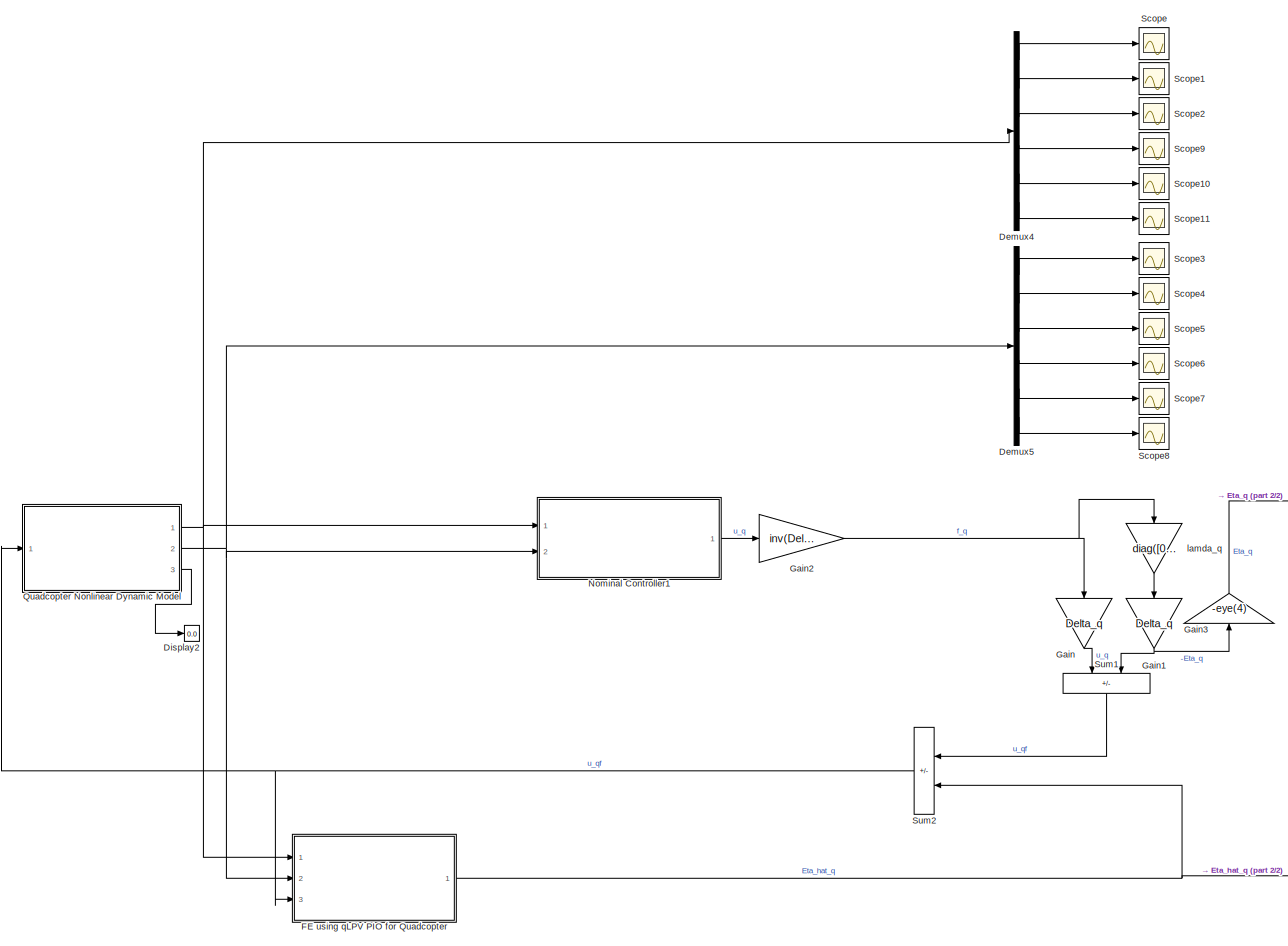
[diagram: root canvas - part 1/2, left side, full height]
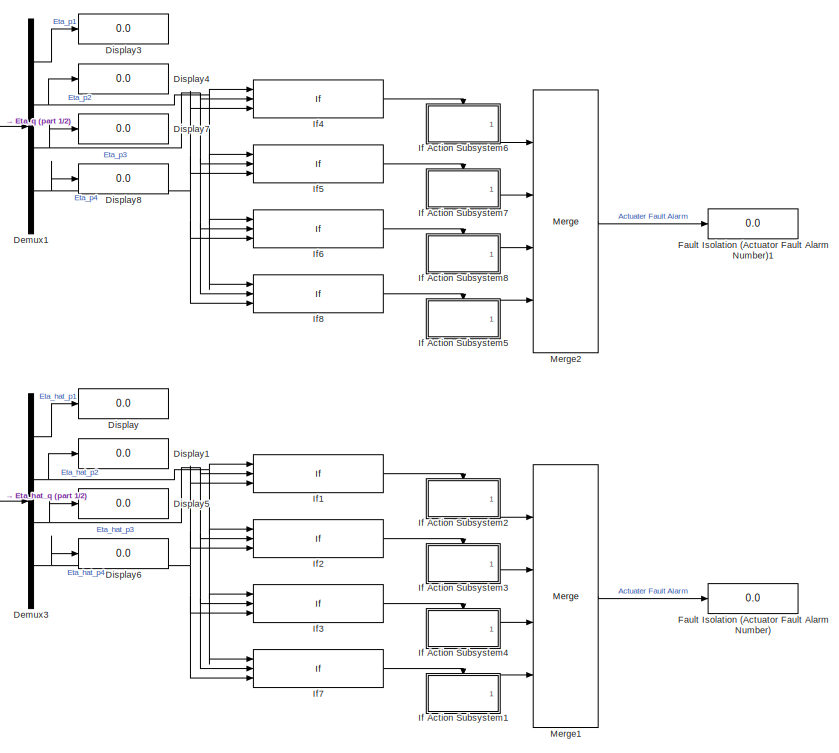
[diagram: root canvas - part 2/2, middle right region]
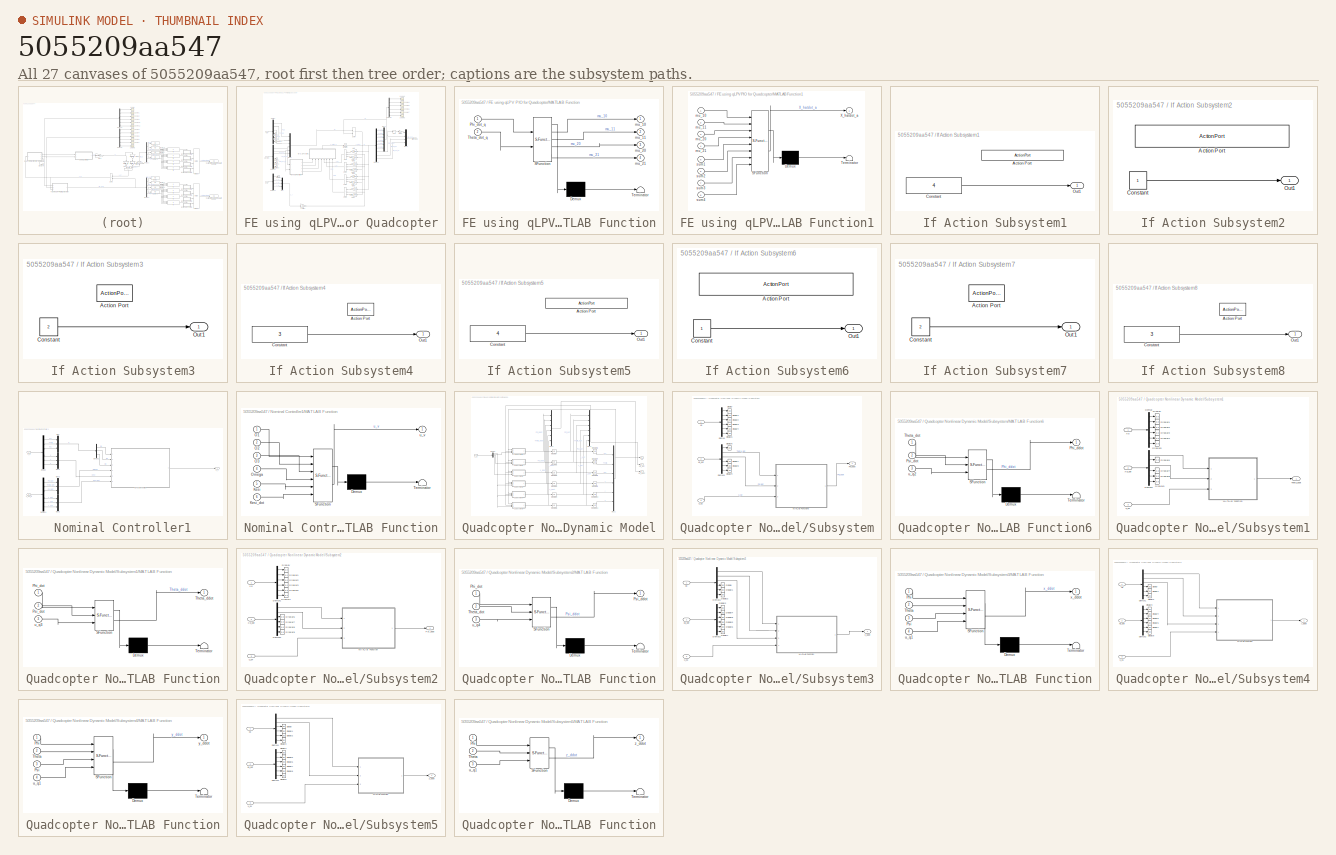
[diagram: thumbnail index - all 27 canvases of the model, root first then tree order]
MODEL slx_5055209aa547
KIND model
CONFIG AbsTol = auto
CONFIG EnableMultiTasking = off
CONFIG FixedStep = auto
CONFIG MaxStep = auto
CONFIG MinStep = auto
CONFIG RelTol = 1e-3
CONFIG SampleTimeConstraint = Unconstrained
CONFIG SolverName = VariableStepAuto
CONFIG StartTime = 0.0
CONFIG StopTime = 10.0
BLOCK [Demux] Demux1
  Ports = [1, 4]
BLOCK [Demux] Demux3
  Ports = [1, 4]
BLOCK [Demux] Demux4
  Outputs = 6
  Ports = [1, 6]
BLOCK [Demux] Demux5
  Outputs = 6
  Ports = [1, 6]
BLOCK [Display] Display
  Decimation = 1
  Ports = [1]
BLOCK [Display] Display1
  Decimation = 1
  Ports = [1]
BLOCK [Display] Display2
  Decimation = 1
  Ports = [1]
BLOCK [Display] Display3
  Decimation = 1
  Ports = [1]
BLOCK [Display] Display4
  Decimation = 1
  Ports = [1]
BLOCK [Display] Display5
  Decimation = 1
  Ports = [1]
BLOCK [Display] Display6
  Decimation = 1
  Ports = [1]
BLOCK [Display] Display7
  Decimation = 1
  Ports = [1]
BLOCK [Display] Display8
  Decimation = 1
  Ports = [1]
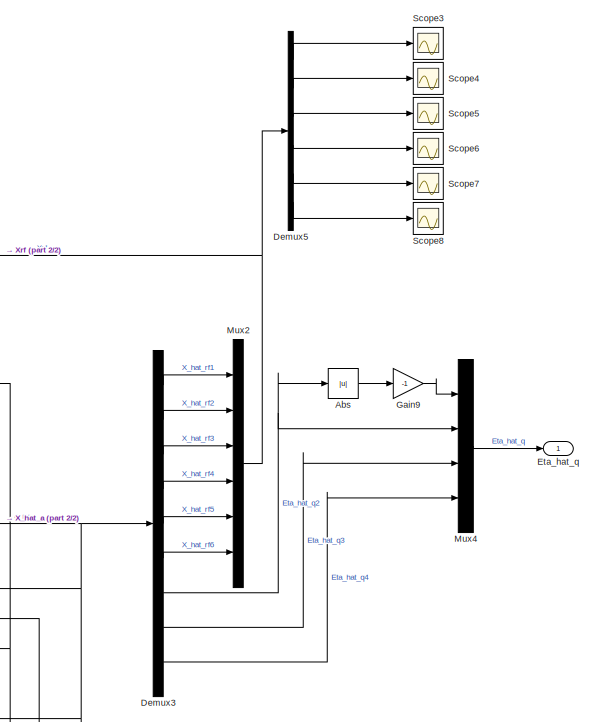
[diagram: FE using qLPV PIO for Quadcopter - part 1/2, top right region]
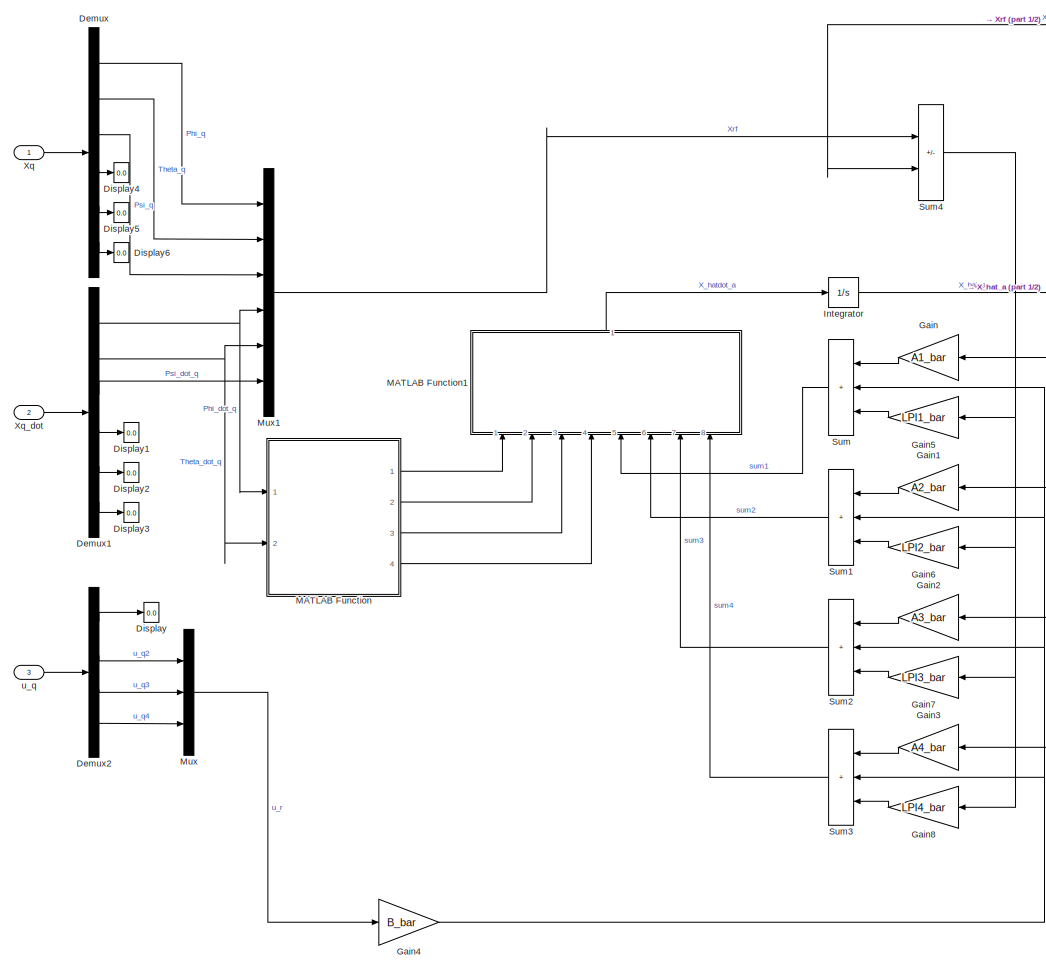
[diagram: FE using qLPV PIO for Quadcopter - part 2/2, left side, full height]
BLOCK [SubSystem] FE using qLPV PIO for Quadcopter
  Ports = [3, 1]
  RequestExecContextInheritance = off
BLOCK [Abs] FE using qLPV PIO for Quadcopter/Abs
  SaturateOnIntegerOverflow = off
BLOCK [Demux] FE using qLPV PIO for Quadcopter/Demux
  Outputs = 6
  Ports = [1, 6]
BLOCK [Demux] FE using qLPV PIO for Quadcopter/Demux1
  Outputs = 6
  Ports = [1, 6]
BLOCK [Demux] FE using qLPV PIO for Quadcopter/Demux2
  Ports = [1, 4]
BLOCK [Demux] FE using qLPV PIO for Quadcopter/Demux3
  Outputs = 9
  Ports = [1, 9]
BLOCK [Demux] FE using qLPV PIO for Quadcopter/Demux5
  Outputs = 6
  Ports = [1, 6]
BLOCK [Display] FE using qLPV PIO for Quadcopter/Display
  Decimation = 1
  Ports = [1]
BLOCK [Display] FE using qLPV PIO for Quadcopter/Display1
  Decimation = 1
  Ports = [1]
BLOCK [Display] FE using qLPV PIO for Quadcopter/Display2
  Decimation = 1
  Ports = [1]
BLOCK [Display] FE using qLPV PIO for Quadcopter/Display3
  Decimation = 1
  Ports = [1]
BLOCK [Display] FE using qLPV PIO for Quadcopter/Display4
  Decimation = 1
  Ports = [1]
BLOCK [Display] FE using qLPV PIO for Quadcopter/Display5
  Decimation = 1
  Ports = [1]
BLOCK [Display] FE using qLPV PIO for Quadcopter/Display6
  Decimation = 1
  Ports = [1]
BLOCK [Outport] FE using qLPV PIO for Quadcopter/Eta_hat_q
BLOCK [Gain] FE using qLPV PIO for Quadcopter/Gain
  Gain = A1_bar
  Multiplication = Matrix(K*u)
  NameLocation = top
BLOCK [Gain] FE using qLPV PIO for Quadcopter/Gain1
  Gain = A2_bar
  Multiplication = Matrix(K*u)
  NameLocation = top
BLOCK [Gain] FE using qLPV PIO for Quadcopter/Gain2
  Gain = A3_bar
  Multiplication = Matrix(K*u)
  NameLocation = top
BLOCK [Gain] FE using qLPV PIO for Quadcopter/Gain3
  Gain = A4_bar
  Multiplication = Matrix(K*u)
  NameLocation = top
BLOCK [Gain] FE using qLPV PIO for Quadcopter/Gain4
  Gain = B_bar
  Multiplication = Matrix(K*u)
BLOCK [Gain] FE using qLPV PIO for Quadcopter/Gain5
  Gain = LPI1_bar
  Multiplication = Matrix(K*u)
  NameLocation = top
BLOCK [Gain] FE using qLPV PIO for Quadcopter/Gain6
  Gain = LPI2_bar
  Multiplication = Matrix(K*u)
  NameLocation = top
BLOCK [Gain] FE using qLPV PIO for Quadcopter/Gain7
  Gain = LPI3_bar
  Multiplication = Matrix(K*u)
  NameLocation = top
BLOCK [Gain] FE using qLPV PIO for Quadcopter/Gain8
  Gain = LPI4_bar
  Multiplication = Matrix(K*u)
  NameLocation = top
BLOCK [Gain] FE using qLPV PIO for Quadcopter/Gain9
  Gain = -1
BLOCK [Integrator] FE using qLPV PIO for Quadcopter/Integrator
  Ports = [1, 1]
BLOCK [SubSystem] FE using qLPV PIO for Quadcopter/MATLAB Function
  ErrorFcn = Stateflow.Translate.translate
  PermitHierarchicalResolution = ExplicitOnly
  Ports = [2, 4]
  RequestExecContextInheritance = off
  SFBlockType = MATLAB Function
  TreatAsAtomicUnit = on
BLOCK [Demux] FE using qLPV PIO for Quadcopter/MATLAB Function/ Demux 
  Outputs = 1
  Ports = [1, 1]
BLOCK [S-Function] FE using qLPV PIO for Quadcopter/MATLAB Function/ SFunction 
  EnableBusSupport = on
  FunctionName = sf_sfun
  PortCounts = [2 5]
  Ports = [2, 5]
  SFcnIsStateOwnerBlock = off
  SFunctionDeploymentMode = off
  Tag = Stateflow S-Function 14
BLOCK [Terminator] FE using qLPV PIO for Quadcopter/MATLAB Function/ Terminator 
BLOCK [Inport] FE using qLPV PIO for Quadcopter/MATLAB Function/Phi_dot_q
BLOCK [Inport] FE using qLPV PIO for Quadcopter/MATLAB Function/Theta_dot_q
  Port = 2
BLOCK [Outport] FE using qLPV PIO for Quadcopter/MATLAB Function/mu_10
BLOCK [Outport] FE using qLPV PIO for Quadcopter/MATLAB Function/mu_11
  Port = 2
BLOCK [Outport] FE using qLPV PIO for Quadcopter/MATLAB Function/mu_20
  Port = 3
BLOCK [Outport] FE using qLPV PIO for Quadcopter/MATLAB Function/mu_21
  Port = 4
BLOCK [SubSystem] FE using qLPV PIO for Quadcopter/MATLAB Function1
  ErrorFcn = Stateflow.Translate.translate
  NameLocation = right
  PermitHierarchicalResolution = ExplicitOnly
  Ports = [8, 1]
  RequestExecContextInheritance = off
  SFBlockType = MATLAB Function
  TreatAsAtomicUnit = on
BLOCK [Demux] FE using qLPV PIO for Quadcopter/MATLAB Function1/ Demux 
  Outputs = 1
  Ports = [1, 1]
BLOCK [S-Function] FE using qLPV PIO for Quadcopter/MATLAB Function1/ SFunction 
  EnableBusSupport = on
  FunctionName = sf_sfun
  PortCounts = [8 2]
  Ports = [8, 2]
  SFcnIsStateOwnerBlock = off
  SFunctionDeploymentMode = off
  Tag = Stateflow S-Function 15
BLOCK [Terminator] FE using qLPV PIO for Quadcopter/MATLAB Function1/ Terminator 
BLOCK [Outport] FE using qLPV PIO for Quadcopter/MATLAB Function1/X_hatdot_a
BLOCK [Inport] FE using qLPV PIO for Quadcopter/MATLAB Function1/mu_10
BLOCK [Inport] FE using qLPV PIO for Quadcopter/MATLAB Function1/mu_11
  Port = 2
BLOCK [Inport] FE using qLPV PIO for Quadcopter/MATLAB Function1/mu_20
  Port = 3
BLOCK [Inport] FE using qLPV PIO for Quadcopter/MATLAB Function1/mu_21
  Port = 4
BLOCK [Inport] FE using qLPV PIO for Quadcopter/MATLAB Function1/sum1
  Port = 5
BLOCK [Inport] FE using qLPV PIO for Quadcopter/MATLAB Function1/sum2
  Port = 6
BLOCK [Inport] FE using qLPV PIO for Quadcopter/MATLAB Function1/sum3
  Port = 7
BLOCK [Inport] FE using qLPV PIO for Quadcopter/MATLAB Function1/sum4
  Port = 8
BLOCK [Mux] FE using qLPV PIO for Quadcopter/Mux
  DisplayOption = bar
  Inputs = 3
  Ports = [3, 1]
BLOCK [Mux] FE using qLPV PIO for Quadcopter/Mux1
  DisplayOption = bar
  Inputs = 6
  Ports = [6, 1]
BLOCK [Mux] FE using qLPV PIO for Quadcopter/Mux2
  DisplayOption = bar
  Inputs = 6
  Ports = [6, 1]
BLOCK [Mux] FE using qLPV PIO for Quadcopter/Mux4
  DisplayOption = bar
  Ports = [4, 1]
BLOCK [Scope] FE using qLPV PIO for Quadcopter/Scope3
  Floating = off
  NumInputPorts = 1
  Ports = [1]
  ScopeSpecificationString = Simulink.scopes.TimeScopeBlockCfg('CurrentConfiguration', extmgr.ConfigurationSet(extmgr.Configuration('Core','General UI',true),extmgr.Configuration('Core','Source UI',true),extmgr.Configuration('Sources','WiredSimulink',true,'DataLoggingVariableName','ScopeData1'),extmgr.Configuration('Visuals','Time Domain',true,'SerializedDisplays',{struct('MinYLimReal','-1.00000','MaxYLimReal','1.00000','YLab...<+1396ch>
BLOCK [Scope] FE using qLPV PIO for Quadcopter/Scope4
  Floating = off
  NumInputPorts = 1
  Ports = [1]
  ScopeSpecificationString = Simulink.scopes.TimeScopeBlockCfg('CurrentConfiguration', extmgr.ConfigurationSet(extmgr.Configuration('Core','General UI',true),extmgr.Configuration('Core','Source UI',true),extmgr.Configuration('Sources','WiredSimulink',true,'DataLoggingVariableName','ScopeData2'),extmgr.Configuration('Visuals','Time Domain',true,'SerializedDisplays',{struct('MinYLimReal','-1.00000','MaxYLimReal','1.00000','YLab...<+1367ch>
BLOCK [Scope] FE using qLPV PIO for Quadcopter/Scope5
  Floating = off
  NumInputPorts = 1
  Ports = [1]
  ScopeSpecificationString = Simulink.scopes.TimeScopeBlockCfg('CurrentConfiguration', extmgr.ConfigurationSet(extmgr.Configuration('Core','General UI',true),extmgr.Configuration('Core','Source UI',true),extmgr.Configuration('Sources','WiredSimulink',true,'DataLoggingVariableName','ScopeData3'),extmgr.Configuration('Visuals','Time Domain',true,'SerializedDisplays',{struct('MinYLimReal','-0.80053','MaxYLimReal','0.71108','YLab...<+1386ch>
BLOCK [Scope] FE using qLPV PIO for Quadcopter/Scope6
  Floating = off
  NumInputPorts = 1
  Ports = [1]
  ScopeSpecificationString = Simulink.scopes.TimeScopeBlockCfg('CurrentConfiguration', extmgr.ConfigurationSet(extmgr.Configuration('Core','General UI',true),extmgr.Configuration('Core','Source UI',true),extmgr.Configuration('Sources','WiredSimulink',true,'DataLoggingVariableName','ScopeData4'),extmgr.Configuration('Visuals','Time Domain',true,'SerializedDisplays',{struct('MinYLimReal','-0.80053','MaxYLimReal','0.71108','YLab...<+1386ch>
BLOCK [Scope] FE using qLPV PIO for Quadcopter/Scope7
  Floating = off
  NumInputPorts = 1
  Ports = [1]
  ScopeSpecificationString = Simulink.scopes.TimeScopeBlockCfg('CurrentConfiguration', extmgr.ConfigurationSet(extmgr.Configuration('Core','General UI',true),extmgr.Configuration('Core','Source UI',true),extmgr.Configuration('Sources','WiredSimulink',true,'DataLoggingVariableName','ScopeData5'),extmgr.Configuration('Visuals','Time Domain',true,'SerializedDisplays',{struct('MinYLimReal','-0.80053','MaxYLimReal','0.71108','YLab...<+1386ch>
BLOCK [Scope] FE using qLPV PIO for Quadcopter/Scope8
  Floating = off
  NumInputPorts = 1
  Ports = [1]
  ScopeSpecificationString = Simulink.scopes.TimeScopeBlockCfg('CurrentConfiguration', extmgr.ConfigurationSet(extmgr.Configuration('Core','General UI',true),extmgr.Configuration('Core','Source UI',true),extmgr.Configuration('Sources','WiredSimulink',true,'DataLoggingVariableName','ScopeData6'),extmgr.Configuration('Visuals','Time Domain',true,'SerializedDisplays',{struct('MinYLimReal','-0.80053','MaxYLimReal','0.71108','YLab...<+1386ch>
BLOCK [Sum] FE using qLPV PIO for Quadcopter/Sum
  IconShape = rectangular
  Inputs = +++
  NameLocation = top
  Ports = [3, 1]
BLOCK [Sum] FE using qLPV PIO for Quadcopter/Sum1
  IconShape = rectangular
  Inputs = +++
  NameLocation = top
  Ports = [3, 1]
BLOCK [Sum] FE using qLPV PIO for Quadcopter/Sum2
  IconShape = rectangular
  Inputs = +++
  NameLocation = top
  Ports = [3, 1]
BLOCK [Sum] FE using qLPV PIO for Quadcopter/Sum3
  IconShape = rectangular
  Inputs = +++
  NameLocation = top
  Ports = [3, 1]
BLOCK [Sum] FE using qLPV PIO for Quadcopter/Sum4
  IconShape = rectangular
  Inputs = +-
  Ports = [2, 1]
BLOCK [Inport] FE using qLPV PIO for Quadcopter/Xq
BLOCK [Inport] FE using qLPV PIO for Quadcopter/Xq_dot
  Port = 2
BLOCK [Inport] FE using qLPV PIO for Quadcopter/u_q
  Port = 3
BLOCK [Display] Fault Isolation (Actuator Fault Alarm Number)
  Decimation = 1
  Ports = [1]
BLOCK [Display] Fault Isolation (Actuator Fault Alarm Number)1
  Decimation = 1
  Ports = [1]
BLOCK [Gain] Gain
  Gain = Delta_q
  Multiplication = Matrix(K*u)
  NameLocation = left
BLOCK [Gain] Gain1
  Gain = Delta_q
  Multiplication = Matrix(K*u)
  NameLocation = left
BLOCK [Gain] Gain2
  Gain = inv(Delta_q)
  Multiplication = Matrix(K*u)
BLOCK [Gain] Gain3
  Gain = -eye(4)
  Multiplication = Matrix(K*u)
  NameLocation = right
BLOCK [SubSystem] If Action Subsystem1
  Ports = [0, 1, 0, 0, 0, 0, 0, 1]
  RequestExecContextInheritance = off
  TreatAsAtomicUnit = on
BLOCK [ActionPort] If Action Subsystem1/Action Port
  ActionPortLabel = if(u1 < 0 & u2 > 0 & u3 < 0)
BLOCK [Constant] If Action Subsystem1/Constant
  Value = 4
BLOCK [Outport] If Action Subsystem1/Out1
BLOCK [SubSystem] If Action Subsystem2
  Ports = [0, 1, 0, 0, 0, 0, 0, 1]
  RequestExecContextInheritance = off
  TreatAsAtomicUnit = on
BLOCK [ActionPort] If Action Subsystem2/Action Port
  ActionPortLabel = if(u1 < 0 & u2 < 0 & u3 > 0)
BLOCK [Constant] If Action Subsystem2/Constant
BLOCK [Outport] If Action Subsystem2/Out1
BLOCK [SubSystem] If Action Subsystem3
  Ports = [0, 1, 0, 0, 0, 0, 0, 1]
  RequestExecContextInheritance = off
  TreatAsAtomicUnit = on
BLOCK [ActionPort] If Action Subsystem3/Action Port
  ActionPortLabel = if(u1 > 0 & u2 < 0 & u3 < 0)
BLOCK [Constant] If Action Subsystem3/Constant
  Value = 2
BLOCK [Outport] If Action Subsystem3/Out1
BLOCK [SubSystem] If Action Subsystem4
  Ports = [0, 1, 0, 0, 0, 0, 0, 1]
  RequestExecContextInheritance = off
  TreatAsAtomicUnit = on
BLOCK [ActionPort] If Action Subsystem4/Action Port
  ActionPortLabel = if(u1 > 0 & u2 > 0 & u3 > 0)
BLOCK [Constant] If Action Subsystem4/Constant
  Value = 3
BLOCK [Outport] If Action Subsystem4/Out1
BLOCK [SubSystem] If Action Subsystem5
  Ports = [0, 1, 0, 0, 0, 0, 0, 1]
  RequestExecContextInheritance = off
  TreatAsAtomicUnit = on
BLOCK [ActionPort] If Action Subsystem5/Action Port
  ActionPortLabel = if(u1 < 0 & u2 > 0 & u3 < 0)
BLOCK [Constant] If Action Subsystem5/Constant
  Value = 4
BLOCK [Outport] If Action Subsystem5/Out1
BLOCK [SubSystem] If Action Subsystem6
  Ports = [0, 1, 0, 0, 0, 0, 0, 1]
  RequestExecContextInheritance = off
  TreatAsAtomicUnit = on
BLOCK [ActionPort] If Action Subsystem6/Action Port
  ActionPortLabel = if(u1 < 0 & u2 < 0 & u3 > 0)
BLOCK [Constant] If Action Subsystem6/Constant
BLOCK [Outport] If Action Subsystem6/Out1
BLOCK [SubSystem] If Action Subsystem7
  Ports = [0, 1, 0, 0, 0, 0, 0, 1]
  RequestExecContextInheritance = off
  TreatAsAtomicUnit = on
BLOCK [ActionPort] If Action Subsystem7/Action Port
  ActionPortLabel = if(u1 > 0 & u2 < 0 & u3 < 0)
BLOCK [Constant] If Action Subsystem7/Constant
  Value = 2
BLOCK [Outport] If Action Subsystem7/Out1
BLOCK [SubSystem] If Action Subsystem8
  Ports = [0, 1, 0, 0, 0, 0, 0, 1]
  RequestExecContextInheritance = off
  TreatAsAtomicUnit = on
BLOCK [ActionPort] If Action Subsystem8/Action Port
  ActionPortLabel = if(u1 > 0 & u2 > 0 & u3 > 0)
BLOCK [Constant] If Action Subsystem8/Constant
  Value = 3
BLOCK [Outport] If Action Subsystem8/Out1
BLOCK [If] If1
  IfExpression = u1 < 0 & u2 < 0 & u3 > 0
  NumInputs = 3
  Ports = [3, 1]
  ShowElse = off
BLOCK [If] If2
  IfExpression = u1 > 0 & u2 < 0 & u3 < 0
  NumInputs = 3
  Ports = [3, 1]
  ShowElse = off
BLOCK [If] If3
  IfExpression = u1 > 0 & u2 > 0 & u3 > 0
  NumInputs = 3
  Ports = [3, 1]
  ShowElse = off
BLOCK [If] If4
  IfExpression = u1 < 0 & u2 < 0 & u3 > 0
  NumInputs = 3
  Ports = [3, 1]
  ShowElse = off
BLOCK [If] If5
  IfExpression = u1 > 0 & u2 < 0 & u3 < 0
  NumInputs = 3
  Ports = [3, 1]
  ShowElse = off
BLOCK [If] If6
  IfExpression = u1 > 0 & u2 > 0 & u3 > 0
  NumInputs = 3
  Ports = [3, 1]
  ShowElse = off
BLOCK [If] If7
  IfExpression = u1 < 0 & u2 > 0 & u3 < 0
  NumInputs = 3
  Ports = [3, 1]
  ShowElse = off
BLOCK [If] If8
  IfExpression = u1 < 0 & u2 > 0 & u3 < 0
  NumInputs = 3
  Ports = [3, 1]
  ShowElse = off
BLOCK [Merge] Merge1
  Inputs = 4
  Ports = [4, 1]
BLOCK [Merge] Merge2
  Inputs = 4
  Ports = [4, 1]
BLOCK [SubSystem] Nominal Controller1
  Ports = [2, 1]
  RequestExecContextInheritance = off
BLOCK [Demux] Nominal Controller1/Demux
  Outputs = 6
  Ports = [1, 6]
BLOCK [Demux] Nominal Controller1/Demux1
  Outputs = 6
  Ports = [1, 6]
BLOCK [Demux] Nominal Controller1/Demux2
  Outputs = 3
  Ports = [1, 3]
BLOCK [SubSystem] Nominal Controller1/MATLAB Function
  ErrorFcn = Stateflow.Translate.translate
  PermitHierarchicalResolution = ExplicitOnly
  Ports = [6, 1]
  RequestExecContextInheritance = off
  SFBlockType = MATLAB Function
  TreatAsAtomicUnit = on
BLOCK [Demux] Nominal Controller1/MATLAB Function/ Demux 
  Outputs = 1
  Ports = [1, 1]
BLOCK [S-Function] Nominal Controller1/MATLAB Function/ SFunction 
  EnableBusSupport = on
  FunctionName = sf_sfun
  Parameters = K_D_kesi,K_D_omega,K_P_kesi,K_P_omega,O_d,Omega_d,kesi_d,kesi_dot_d
  PortCounts = [6 2]
  Ports = [6, 2]
  SFcnIsStateOwnerBlock = off
  SFunctionDeploymentMode = off
  Tag = Stateflow S-Function 7
BLOCK [Terminator] Nominal Controller1/MATLAB Function/ Terminator 
BLOCK [Inport] Nominal Controller1/MATLAB Function/Kesi
  Port = 5
BLOCK [Inport] Nominal Controller1/MATLAB Function/Kesi_dot
  Port = 6
BLOCK [Inport] Nominal Controller1/MATLAB Function/O1
BLOCK [Inport] Nominal Controller1/MATLAB Function/O2
  Port = 2
BLOCK [Inport] Nominal Controller1/MATLAB Function/O3
  Port = 3
BLOCK [Inport] Nominal Controller1/MATLAB Function/Omega
  Port = 4
BLOCK [Outport] Nominal Controller1/MATLAB Function/u_v
BLOCK [Mux] Nominal Controller1/Mux
  DisplayOption = bar
  Inputs = 3
  Ports = [3, 1]
BLOCK [Mux] Nominal Controller1/Mux1
  DisplayOption = bar
  Inputs = 3
  Ports = [3, 1]
BLOCK [Mux] Nominal Controller1/Mux2
  DisplayOption = bar
  Inputs = 3
  Ports = [3, 1]
BLOCK [Mux] Nominal Controller1/Mux3
  DisplayOption = bar
  Inputs = 3
  Ports = [3, 1]
BLOCK [Inport] Nominal Controller1/X_dot_q
  Port = 2
BLOCK [Inport] Nominal Controller1/X_q
BLOCK [Outport] Nominal Controller1/u_v
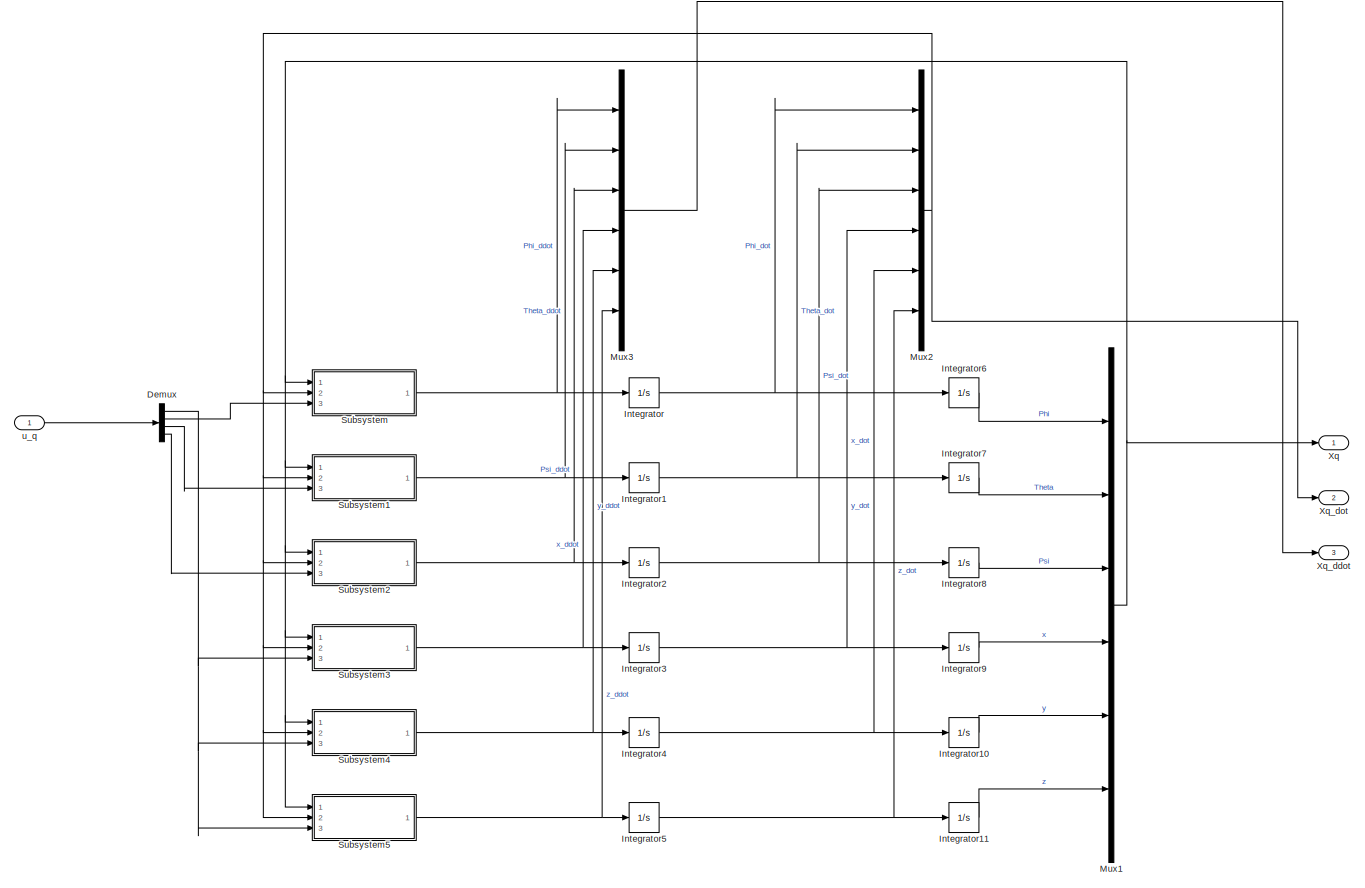
[diagram: Quadcopter Nonlinear Dynamic Model - part 1/1, most of the canvas]
BLOCK [SubSystem] Quadcopter Nonlinear Dynamic Model
  Ports = [1, 3]
  RequestExecContextInheritance = off
BLOCK [Demux] Quadcopter Nonlinear Dynamic Model/Demux
  Ports = [1, 4]
BLOCK [Integrator] Quadcopter Nonlinear Dynamic Model/Integrator
  InitialCondition = Phi_dot_init
  Ports = [1, 1]
BLOCK [Integrator] Quadcopter Nonlinear Dynamic Model/Integrator1
  InitialCondition = Theta_dot_init
  Ports = [1, 1]
BLOCK [Integrator] Quadcopter Nonlinear Dynamic Model/Integrator10
  InitialCondition = y_init
  Ports = [1, 1]
BLOCK [Integrator] Quadcopter Nonlinear Dynamic Model/Integrator11
  InitialCondition = z_init
  Ports = [1, 1]
BLOCK [Integrator] Quadcopter Nonlinear Dynamic Model/Integrator2
  InitialCondition = Psi_dot_init
  Ports = [1, 1]
BLOCK [Integrator] Quadcopter Nonlinear Dynamic Model/Integrator3
  InitialCondition = x_dot_init
  Ports = [1, 1]
BLOCK [Integrator] Quadcopter Nonlinear Dynamic Model/Integrator4
  InitialCondition = y_dot_init
  Ports = [1, 1]
BLOCK [Integrator] Quadcopter Nonlinear Dynamic Model/Integrator5
  InitialCondition = z_dot_init
  Ports = [1, 1]
BLOCK [Integrator] Quadcopter Nonlinear Dynamic Model/Integrator6
  InitialCondition = Phi_init
  Ports = [1, 1]
BLOCK [Integrator] Quadcopter Nonlinear Dynamic Model/Integrator7
  InitialCondition = Theta_init
  Ports = [1, 1]
BLOCK [Integrator] Quadcopter Nonlinear Dynamic Model/Integrator8
  InitialCondition = Psi_init
  Ports = [1, 1]
BLOCK [Integrator] Quadcopter Nonlinear Dynamic Model/Integrator9
  InitialCondition = x_init
  Ports = [1, 1]
BLOCK [Mux] Quadcopter Nonlinear Dynamic Model/Mux1
  DisplayOption = bar
  Inputs = 6
  Ports = [6, 1]
BLOCK [Mux] Quadcopter Nonlinear Dynamic Model/Mux2
  DisplayOption = bar
  Inputs = 6
  Ports = [6, 1]
BLOCK [Mux] Quadcopter Nonlinear Dynamic Model/Mux3
  DisplayOption = bar
  Inputs = 6
  Ports = [6, 1]
BLOCK [SubSystem] Quadcopter Nonlinear Dynamic Model/Subsystem
  Ports = [3, 1]
  RequestExecContextInheritance = off
BLOCK [Demux] Quadcopter Nonlinear Dynamic Model/Subsystem/Demux
  Outputs = 6
  Ports = [1, 6]
BLOCK [Demux] Quadcopter Nonlinear Dynamic Model/Subsystem/Demux1
  Outputs = 6
  Ports = [1, 6]
BLOCK [Display] Quadcopter Nonlinear Dynamic Model/Subsystem/Display
  Decimation = 1
  Ports = [1]
BLOCK [Display] Quadcopter Nonlinear Dynamic Model/Subsystem/Display1
  Decimation = 1
  Ports = [1]
BLOCK [Display] Quadcopter Nonlinear Dynamic Model/Subsystem/Display2
  Decimation = 1
  Ports = [1]
BLOCK [Display] Quadcopter Nonlinear Dynamic Model/Subsystem/Display3
  Decimation = 1
  Ports = [1]
BLOCK [Display] Quadcopter Nonlinear Dynamic Model/Subsystem/Display4
  Decimation = 1
  Ports = [1]
BLOCK [Display] Quadcopter Nonlinear Dynamic Model/Subsystem/Display5
  Decimation = 1
  Ports = [1]
BLOCK [Display] Quadcopter Nonlinear Dynamic Model/Subsystem/Display6
  Decimation = 1
  Ports = [1]
BLOCK [Display] Quadcopter Nonlinear Dynamic Model/Subsystem/Display7
  Decimation = 1
  Ports = [1]
BLOCK [Display] Quadcopter Nonlinear Dynamic Model/Subsystem/Display8
  Decimation = 1
  Ports = [1]
BLOCK [Display] Quadcopter Nonlinear Dynamic Model/Subsystem/Display9
  Decimation = 1
  Ports = [1]
BLOCK [SubSystem] Quadcopter Nonlinear Dynamic Model/Subsystem/MATLAB Function6
  ErrorFcn = Stateflow.Translate.translate
  PermitHierarchicalResolution = ExplicitOnly
  Ports = [3, 1]
  RequestExecContextInheritance = off
  SFBlockType = MATLAB Function
  TreatAsAtomicUnit = on
BLOCK [Demux] Quadcopter Nonlinear Dynamic Model/Subsystem/MATLAB Function6/ Demux 
  Outputs = 1
  Ports = [1, 1]
BLOCK [S-Function] Quadcopter Nonlinear Dynamic Model/Subsystem/MATLAB Function6/ SFunction 
  EnableBusSupport = on
  FunctionName = sf_sfun
  Parameters = Jrz,Jx,Jy,Jz,Omega_M,l
  PortCounts = [3 2]
  Ports = [3, 2]
  SFcnIsStateOwnerBlock = off
  SFunctionDeploymentMode = off
  Tag = Stateflow S-Function 1
BLOCK [Terminator] Quadcopter Nonlinear Dynamic Model/Subsystem/MATLAB Function6/ Terminator 
BLOCK [Outport] Quadcopter Nonlinear Dynamic Model/Subsystem/MATLAB Function6/Phi_ddot
BLOCK [Inport] Quadcopter Nonlinear Dynamic Model/Subsystem/MATLAB Function6/Psi_dot
  Port = 2
BLOCK [Inport] Quadcopter Nonlinear Dynamic Model/Subsystem/MATLAB Function6/Theta_dot
BLOCK [Inport] Quadcopter Nonlinear Dynamic Model/Subsystem/MATLAB Function6/u_q2
  Port = 3
BLOCK [Outport] Quadcopter Nonlinear Dynamic Model/Subsystem/Phi_ddot
BLOCK [Inport] Quadcopter Nonlinear Dynamic Model/Subsystem/Xq
BLOCK [Inport] Quadcopter Nonlinear Dynamic Model/Subsystem/Xq_dot
  Port = 2
BLOCK [Inport] Quadcopter Nonlinear Dynamic Model/Subsystem/u_q2
  Port = 3
BLOCK [SubSystem] Quadcopter Nonlinear Dynamic Model/Subsystem1
  Ports = [3, 1]
  RequestExecContextInheritance = off
BLOCK [Demux] Quadcopter Nonlinear Dynamic Model/Subsystem1/Demux
  Outputs = 6
  Ports = [1, 6]
BLOCK [Demux] Quadcopter Nonlinear Dynamic Model/Subsystem1/Demux1
  Outputs = 6
  Ports = [1, 6]
BLOCK [Display] Quadcopter Nonlinear Dynamic Model/Subsystem1/Display
  Decimation = 1
  Ports = [1]
BLOCK [Display] Quadcopter Nonlinear Dynamic Model/Subsystem1/Display1
  Decimation = 1
  Ports = [1]
BLOCK [Display] Quadcopter Nonlinear Dynamic Model/Subsystem1/Display2
  Decimation = 1
  Ports = [1]
BLOCK [Display] Quadcopter Nonlinear Dynamic Model/Subsystem1/Display3
  Decimation = 1
  Ports = [1]
BLOCK [Display] Quadcopter Nonlinear Dynamic Model/Subsystem1/Display4
  Decimation = 1
  Ports = [1]
BLOCK [Display] Quadcopter Nonlinear Dynamic Model/Subsystem1/Display5
  Decimation = 1
  Ports = [1]
BLOCK [Display] Quadcopter Nonlinear Dynamic Model/Subsystem1/Display6
  Decimation = 1
  Ports = [1]
BLOCK [Display] Quadcopter Nonlinear Dynamic Model/Subsystem1/Display7
  Decimation = 1
  Ports = [1]
BLOCK [Display] Quadcopter Nonlinear Dynamic Model/Subsystem1/Display8
  Decimation = 1
  Ports = [1]
BLOCK [Display] Quadcopter Nonlinear Dynamic Model/Subsystem1/Display9
  Decimation = 1
  Ports = [1]
BLOCK [SubSystem] Quadcopter Nonlinear Dynamic Model/Subsystem1/MATLAB Function
  ErrorFcn = Stateflow.Translate.translate
  PermitHierarchicalResolution = ExplicitOnly
  Ports = [3, 1]
  RequestExecContextInheritance = off
  SFBlockType = MATLAB Function
  TreatAsAtomicUnit = on
BLOCK [Demux] Quadcopter Nonlinear Dynamic Model/Subsystem1/MATLAB Function/ Demux 
  Outputs = 1
  Ports = [1, 1]
BLOCK [S-Function] Quadcopter Nonlinear Dynamic Model/Subsystem1/MATLAB Function/ SFunction 
  EnableBusSupport = on
  FunctionName = sf_sfun
  Parameters = Jrz,Jx,Jy,Jz,Omega_M,l
  PortCounts = [3 2]
  Ports = [3, 2]
  SFcnIsStateOwnerBlock = off
  SFunctionDeploymentMode = off
  Tag = Stateflow S-Function 2
BLOCK [Terminator] Quadcopter Nonlinear Dynamic Model/Subsystem1/MATLAB Function/ Terminator 
BLOCK [Inport] Quadcopter Nonlinear Dynamic Model/Subsystem1/MATLAB Function/Phi_dot
BLOCK [Inport] Quadcopter Nonlinear Dynamic Model/Subsystem1/MATLAB Function/Psi_dot
  Port = 2
BLOCK [Outport] Quadcopter Nonlinear Dynamic Model/Subsystem1/MATLAB Function/Theta_ddot
BLOCK [Inport] Quadcopter Nonlinear Dynamic Model/Subsystem1/MATLAB Function/u_q3
  Port = 3
BLOCK [Outport] Quadcopter Nonlinear Dynamic Model/Subsystem1/Theta_ddot
BLOCK [Inport] Quadcopter Nonlinear Dynamic Model/Subsystem1/Xq
BLOCK [Inport] Quadcopter Nonlinear Dynamic Model/Subsystem1/Xq_dot
  Port = 2
BLOCK [Inport] Quadcopter Nonlinear Dynamic Model/Subsystem1/u_q3
  Port = 3
BLOCK [SubSystem] Quadcopter Nonlinear Dynamic Model/Subsystem2
  Ports = [3, 1]
  RequestExecContextInheritance = off
BLOCK [Demux] Quadcopter Nonlinear Dynamic Model/Subsystem2/Demux1
  Outputs = 6
  Ports = [1, 6]
BLOCK [Demux] Quadcopter Nonlinear Dynamic Model/Subsystem2/Demux2
  Outputs = 6
  Ports = [1, 6]
BLOCK [Display] Quadcopter Nonlinear Dynamic Model/Subsystem2/Display
  Decimation = 1
  Ports = [1]
BLOCK [Display] Quadcopter Nonlinear Dynamic Model/Subsystem2/Display1
  Decimation = 1
  Ports = [1]
BLOCK [Display] Quadcopter Nonlinear Dynamic Model/Subsystem2/Display2
  Decimation = 1
  Ports = [1]
BLOCK [Display] Quadcopter Nonlinear Dynamic Model/Subsystem2/Display3
  Decimation = 1
  Ports = [1]
BLOCK [Display] Quadcopter Nonlinear Dynamic Model/Subsystem2/Display4
  Decimation = 1
  Ports = [1]
BLOCK [Display] Quadcopter Nonlinear Dynamic Model/Subsystem2/Display5
  Decimation = 1
  Ports = [1]
BLOCK [Display] Quadcopter Nonlinear Dynamic Model/Subsystem2/Display6
  Decimation = 1
  Ports = [1]
BLOCK [Display] Quadcopter Nonlinear Dynamic Model/Subsystem2/Display7
  Decimation = 1
  Ports = [1]
BLOCK [Display] Quadcopter Nonlinear Dynamic Model/Subsystem2/Display8
  Decimation = 1
  Ports = [1]
BLOCK [Display] Quadcopter Nonlinear Dynamic Model/Subsystem2/Display9
  Decimation = 1
  Ports = [1]
BLOCK [SubSystem] Quadcopter Nonlinear Dynamic Model/Subsystem2/MATLAB Function
  ErrorFcn = Stateflow.Translate.translate
  PermitHierarchicalResolution = ExplicitOnly
  Ports = [3, 1]
  RequestExecContextInheritance = off
  SFBlockType = MATLAB Function
  TreatAsAtomicUnit = on
BLOCK [Demux] Quadcopter Nonlinear Dynamic Model/Subsystem2/MATLAB Function/ Demux 
  Outputs = 1
  Ports = [1, 1]
BLOCK [S-Function] Quadcopter Nonlinear Dynamic Model/Subsystem2/MATLAB Function/ SFunction 
  EnableBusSupport = on
  FunctionName = sf_sfun
  Parameters = Jx,Jy,Jz,d
  PortCounts = [3 2]
  Ports = [3, 2]
  SFcnIsStateOwnerBlock = off
  SFunctionDeploymentMode = off
  Tag = Stateflow S-Function 3
BLOCK [Terminator] Quadcopter Nonlinear Dynamic Model/Subsystem2/MATLAB Function/ Terminator 
BLOCK [Inport] Quadcopter Nonlinear Dynamic Model/Subsystem2/MATLAB Function/Phi_dot
BLOCK [Outport] Quadcopter Nonlinear Dynamic Model/Subsystem2/MATLAB Function/Psi_ddot
BLOCK [Inport] Quadcopter Nonlinear Dynamic Model/Subsystem2/MATLAB Function/Theta_dot
  Port = 2
BLOCK [Inport] Quadcopter Nonlinear Dynamic Model/Subsystem2/MATLAB Function/u_q4
  Port = 3
BLOCK [Outport] Quadcopter Nonlinear Dynamic Model/Subsystem2/Psi_ddot
BLOCK [Inport] Quadcopter Nonlinear Dynamic Model/Subsystem2/Xq
BLOCK [Inport] Quadcopter Nonlinear Dynamic Model/Subsystem2/Xq_dot
  Port = 2
BLOCK [Inport] Quadcopter Nonlinear Dynamic Model/Subsystem2/u_q4
  Port = 3
BLOCK [SubSystem] Quadcopter Nonlinear Dynamic Model/Subsystem3
  Ports = [3, 1]
  RequestExecContextInheritance = off
BLOCK [Demux] Quadcopter Nonlinear Dynamic Model/Subsystem3/Demux1
  Outputs = 6
  Ports = [1, 6]
BLOCK [Demux] Quadcopter Nonlinear Dynamic Model/Subsystem3/Demux2
  Outputs = 6
  Ports = [1, 6]
BLOCK [Display] Quadcopter Nonlinear Dynamic Model/Subsystem3/Display
  Decimation = 1
  Ports = [1]
BLOCK [Display] Quadcopter Nonlinear Dynamic Model/Subsystem3/Display1
  Decimation = 1
  Ports = [1]
BLOCK [Display] Quadcopter Nonlinear Dynamic Model/Subsystem3/Display2
  Decimation = 1
  Ports = [1]
BLOCK [Display] Quadcopter Nonlinear Dynamic Model/Subsystem3/Display3
  Decimation = 1
  Ports = [1]
BLOCK [Display] Quadcopter Nonlinear Dynamic Model/Subsystem3/Display4
  Decimation = 1
  Ports = [1]
BLOCK [Display] Quadcopter Nonlinear Dynamic Model/Subsystem3/Display5
  Decimation = 1
  Ports = [1]
BLOCK [Display] Quadcopter Nonlinear Dynamic Model/Subsystem3/Display6
  Decimation = 1
  Ports = [1]
BLOCK [Display] Quadcopter Nonlinear Dynamic Model/Subsystem3/Display7
  Decimation = 1
  Ports = [1]
BLOCK [Display] Quadcopter Nonlinear Dynamic Model/Subsystem3/Display8
  Decimation = 1
  Ports = [1]
BLOCK [SubSystem] Quadcopter Nonlinear Dynamic Model/Subsystem3/MATLAB Function
  ErrorFcn = Stateflow.Translate.translate
  PermitHierarchicalResolution = ExplicitOnly
  Ports = [4, 1]
  RequestExecContextInheritance = off
  SFBlockType = MATLAB Function
  TreatAsAtomicUnit = on
BLOCK [Demux] Quadcopter Nonlinear Dynamic Model/Subsystem3/MATLAB Function/ Demux 
  Outputs = 1
  Ports = [1, 1]
BLOCK [S-Function] Quadcopter Nonlinear Dynamic Model/Subsystem3/MATLAB Function/ SFunction 
  EnableBusSupport = on
  FunctionName = sf_sfun
  Parameters = m
  PortCounts = [4 2]
  Ports = [4, 2]
  SFcnIsStateOwnerBlock = off
  SFunctionDeploymentMode = off
  Tag = Stateflow S-Function 4
BLOCK [Terminator] Quadcopter Nonlinear Dynamic Model/Subsystem3/MATLAB Function/ Terminator 
BLOCK [Inport] Quadcopter Nonlinear Dynamic Model/Subsystem3/MATLAB Function/Phi
BLOCK [Inport] Quadcopter Nonlinear Dynamic Model/Subsystem3/MATLAB Function/Psi
  Port = 3
BLOCK [Inport] Quadcopter Nonlinear Dynamic Model/Subsystem3/MATLAB Function/Theta
  Port = 2
BLOCK [Inport] Quadcopter Nonlinear Dynamic Model/Subsystem3/MATLAB Function/u_q1
  Port = 4
BLOCK [Outport] Quadcopter Nonlinear Dynamic Model/Subsystem3/MATLAB Function/x_ddot
BLOCK [Inport] Quadcopter Nonlinear Dynamic Model/Subsystem3/Xq
BLOCK [Inport] Quadcopter Nonlinear Dynamic Model/Subsystem3/Xq_dot
  Port = 2
BLOCK [Inport] Quadcopter Nonlinear Dynamic Model/Subsystem3/u_q1
  Port = 3
BLOCK [Outport] Quadcopter Nonlinear Dynamic Model/Subsystem3/x_ddot
BLOCK [SubSystem] Quadcopter Nonlinear Dynamic Model/Subsystem4
  Ports = [3, 1]
  RequestExecContextInheritance = off
BLOCK [Demux] Quadcopter Nonlinear Dynamic Model/Subsystem4/Demux1
  Outputs = 6
  Ports = [1, 6]
BLOCK [Demux] Quadcopter Nonlinear Dynamic Model/Subsystem4/Demux2
  Outputs = 6
  Ports = [1, 6]
BLOCK [Display] Quadcopter Nonlinear Dynamic Model/Subsystem4/Display
  Decimation = 1
  Ports = [1]
BLOCK [Display] Quadcopter Nonlinear Dynamic Model/Subsystem4/Display1
  Decimation = 1
  Ports = [1]
BLOCK [Display] Quadcopter Nonlinear Dynamic Model/Subsystem4/Display2
  Decimation = 1
  Ports = [1]
BLOCK [Display] Quadcopter Nonlinear Dynamic Model/Subsystem4/Display3
  Decimation = 1
  Ports = [1]
BLOCK [Display] Quadcopter Nonlinear Dynamic Model/Subsystem4/Display4
  Decimation = 1
  Ports = [1]
BLOCK [Display] Quadcopter Nonlinear Dynamic Model/Subsystem4/Display5
  Decimation = 1
  Ports = [1]
BLOCK [Display] Quadcopter Nonlinear Dynamic Model/Subsystem4/Display6
  Decimation = 1
  Ports = [1]
BLOCK [Display] Quadcopter Nonlinear Dynamic Model/Subsystem4/Display7
  Decimation = 1
  Ports = [1]
BLOCK [Display] Quadcopter Nonlinear Dynamic Model/Subsystem4/Display8
  Decimation = 1
  Ports = [1]
BLOCK [SubSystem] Quadcopter Nonlinear Dynamic Model/Subsystem4/MATLAB Function
  ErrorFcn = Stateflow.Translate.translate
  PermitHierarchicalResolution = ExplicitOnly
  Ports = [4, 1]
  RequestExecContextInheritance = off
  SFBlockType = MATLAB Function
  TreatAsAtomicUnit = on
BLOCK [Demux] Quadcopter Nonlinear Dynamic Model/Subsystem4/MATLAB Function/ Demux 
  Outputs = 1
  Ports = [1, 1]
BLOCK [S-Function] Quadcopter Nonlinear Dynamic Model/Subsystem4/MATLAB Function/ SFunction 
  EnableBusSupport = on
  FunctionName = sf_sfun
  Parameters = m
  PortCounts = [4 2]
  Ports = [4, 2]
  SFcnIsStateOwnerBlock = off
  SFunctionDeploymentMode = off
  Tag = Stateflow S-Function 5
BLOCK [Terminator] Quadcopter Nonlinear Dynamic Model/Subsystem4/MATLAB Function/ Terminator 
BLOCK [Inport] Quadcopter Nonlinear Dynamic Model/Subsystem4/MATLAB Function/Phi
BLOCK [Inport] Quadcopter Nonlinear Dynamic Model/Subsystem4/MATLAB Function/Psi
  Port = 3
BLOCK [Inport] Quadcopter Nonlinear Dynamic Model/Subsystem4/MATLAB Function/Theta
  Port = 2
BLOCK [Inport] Quadcopter Nonlinear Dynamic Model/Subsystem4/MATLAB Function/u_q1
  Port = 4
BLOCK [Outport] Quadcopter Nonlinear Dynamic Model/Subsystem4/MATLAB Function/y_ddot
BLOCK [Inport] Quadcopter Nonlinear Dynamic Model/Subsystem4/Xq
BLOCK [Inport] Quadcopter Nonlinear Dynamic Model/Subsystem4/Xq_dot
  Port = 2
BLOCK [Inport] Quadcopter Nonlinear Dynamic Model/Subsystem4/u_q1
  Port = 3
BLOCK [Outport] Quadcopter Nonlinear Dynamic Model/Subsystem4/y_ddot
BLOCK [SubSystem] Quadcopter Nonlinear Dynamic Model/Subsystem5
  Ports = [3, 1]
  RequestExecContextInheritance = off
BLOCK [Demux] Quadcopter Nonlinear Dynamic Model/Subsystem5/Demux1
  Outputs = 6
  Ports = [1, 6]
BLOCK [Demux] Quadcopter Nonlinear Dynamic Model/Subsystem5/Demux2
  Outputs = 6
  Ports = [1, 6]
BLOCK [Display] Quadcopter Nonlinear Dynamic Model/Subsystem5/Display
  Decimation = 1
  Ports = [1]
BLOCK [Display] Quadcopter Nonlinear Dynamic Model/Subsystem5/Display1
  Decimation = 1
  Ports = [1]
BLOCK [Display] Quadcopter Nonlinear Dynamic Model/Subsystem5/Display2
  Decimation = 1
  Ports = [1]
BLOCK [Display] Quadcopter Nonlinear Dynamic Model/Subsystem5/Display3
  Decimation = 1
  Ports = [1]
BLOCK [Display] Quadcopter Nonlinear Dynamic Model/Subsystem5/Display4
  Decimation = 1
  Ports = [1]
BLOCK [Display] Quadcopter Nonlinear Dynamic Model/Subsystem5/Display5
  Decimation = 1
  Ports = [1]
BLOCK [Display] Quadcopter Nonlinear Dynamic Model/Subsystem5/Display6
  Decimation = 1
  Ports = [1]
BLOCK [Display] Quadcopter Nonlinear Dynamic Model/Subsystem5/Display7
  Decimation = 1
  Ports = [1]
BLOCK [Display] Quadcopter Nonlinear Dynamic Model/Subsystem5/Display8
  Decimation = 1
  Ports = [1]
BLOCK [Display] Quadcopter Nonlinear Dynamic Model/Subsystem5/Display9
  Decimation = 1
  Ports = [1]
BLOCK [SubSystem] Quadcopter Nonlinear Dynamic Model/Subsystem5/MATLAB Function
  ErrorFcn = Stateflow.Translate.translate
  PermitHierarchicalResolution = ExplicitOnly
  Ports = [3, 1]
  RequestExecContextInheritance = off
  SFBlockType = MATLAB Function
  TreatAsAtomicUnit = on
BLOCK [Demux] Quadcopter Nonlinear Dynamic Model/Subsystem5/MATLAB Function/ Demux 
  Outputs = 1
  Ports = [1, 1]
BLOCK [S-Function] Quadcopter Nonlinear Dynamic Model/Subsystem5/MATLAB Function/ SFunction 
  EnableBusSupport = on
  FunctionName = sf_sfun
  Parameters = g,m
  PortCounts = [3 2]
  Ports = [3, 2]
  SFcnIsStateOwnerBlock = off
  SFunctionDeploymentMode = off
  Tag = Stateflow S-Function 6
BLOCK [Terminator] Quadcopter Nonlinear Dynamic Model/Subsystem5/MATLAB Function/ Terminator 
BLOCK [Inport] Quadcopter Nonlinear Dynamic Model/Subsystem5/MATLAB Function/Phi
BLOCK [Inport] Quadcopter Nonlinear Dynamic Model/Subsystem5/MATLAB Function/Theta
  Port = 2
BLOCK [Inport] Quadcopter Nonlinear Dynamic Model/Subsystem5/MATLAB Function/u_q1
  Port = 3
BLOCK [Outport] Quadcopter Nonlinear Dynamic Model/Subsystem5/MATLAB Function/z_ddot
BLOCK [Inport] Quadcopter Nonlinear Dynamic Model/Subsystem5/Xq
BLOCK [Inport] Quadcopter Nonlinear Dynamic Model/Subsystem5/Xq_dot
  Port = 2
BLOCK [Inport] Quadcopter Nonlinear Dynamic Model/Subsystem5/u_q1
  Port = 3
BLOCK [Outport] Quadcopter Nonlinear Dynamic Model/Subsystem5/z_ddot
BLOCK [Outport] Quadcopter Nonlinear Dynamic Model/Xq
BLOCK [Outport] Quadcopter Nonlinear Dynamic Model/Xq_ddot
  Port = 3
BLOCK [Outport] Quadcopter Nonlinear Dynamic Model/Xq_dot
  Port = 2
BLOCK [Inport] Quadcopter Nonlinear Dynamic Model/u_q 
BLOCK [Scope] Scope
  Floating = off
  NumInputPorts = 1
  Ports = [1]
  ScopeSpecificationString = Simulink.scopes.TimeScopeBlockCfg('CurrentConfiguration', extmgr.ConfigurationSet(extmgr.Configuration('Core','General UI',true),extmgr.Configuration('Core','Source UI',true),extmgr.Configuration('Sources','WiredSimulink',true),extmgr.Configuration('Visuals','Time Domain',true,'SerializedDisplays',{struct('MinYLimReal','-1.00000','MaxYLimReal','1.00000','YLabelReal','','MinYLimMag','0.00000','MaxY...<+1328ch>
BLOCK [Scope] Scope1
  Floating = off
  NumInputPorts = 1
  Ports = [1]
  ScopeSpecificationString = Simulink.scopes.TimeScopeBlockCfg('CurrentConfiguration', extmgr.ConfigurationSet(extmgr.Configuration('Core','General UI',true),extmgr.Configuration('Core','Source UI',true),extmgr.Configuration('Sources','WiredSimulink',true,'DataLoggingVariableName','ScopeData1'),extmgr.Configuration('Visuals','Time Domain',true,'SerializedDisplays',{struct('MinYLimReal','-1.00000','MaxYLimReal','1.00000','YLab...<+1396ch>
BLOCK [Scope] Scope10
  Floating = off
  NumInputPorts = 1
  Ports = [1]
  ScopeSpecificationString = Simulink.scopes.TimeScopeBlockCfg('CurrentConfiguration', extmgr.ConfigurationSet(extmgr.Configuration('Core','General UI',true),extmgr.Configuration('Core','Source UI',true),extmgr.Configuration('Sources','WiredSimulink',true,'DataLoggingVariableName','ScopeData10'),extmgr.Configuration('Visuals','Time Domain',true,'SerializedDisplays',{struct('MinYLimReal','-1.00000','MaxYLimReal','1.00000','YLa...<+1397ch>
BLOCK [Scope] Scope11
  Floating = off
  NumInputPorts = 1
  Ports = [1]
  ScopeSpecificationString = Simulink.scopes.TimeScopeBlockCfg('CurrentConfiguration', extmgr.ConfigurationSet(extmgr.Configuration('Core','General UI',true),extmgr.Configuration('Core','Source UI',true),extmgr.Configuration('Sources','WiredSimulink',true,'DataLoggingVariableName','ScopeData11'),extmgr.Configuration('Visuals','Time Domain',true,'SerializedDisplays',{struct('MinYLimReal','-0.16533','MaxYLimReal','0.01837','YLa...<+1397ch>
BLOCK [Scope] Scope2
  Floating = off
  NumInputPorts = 1
  Ports = [1]
  ScopeSpecificationString = Simulink.scopes.TimeScopeBlockCfg('CurrentConfiguration', extmgr.ConfigurationSet(extmgr.Configuration('Core','General UI',true),extmgr.Configuration('Core','Source UI',true),extmgr.Configuration('Sources','WiredSimulink',true,'DataLoggingVariableName','ScopeData2'),extmgr.Configuration('Visuals','Time Domain',true,'SerializedDisplays',{struct('MinYLimReal','-1.00000','MaxYLimReal','1.00000','YLab...<+1396ch>
BLOCK [Scope] Scope3
  Floating = off
  NumInputPorts = 1
  Ports = [1]
  ScopeSpecificationString = Simulink.scopes.TimeScopeBlockCfg('CurrentConfiguration', extmgr.ConfigurationSet(extmgr.Configuration('Core','General UI',true),extmgr.Configuration('Core','Source UI',true),extmgr.Configuration('Sources','WiredSimulink',true,'DataLoggingVariableName','ScopeData3'),extmgr.Configuration('Visuals','Time Domain',true,'SerializedDisplays',{struct('MinYLimReal','-1.00000','MaxYLimReal','1.00000','YLab...<+1396ch>
BLOCK [Scope] Scope4
  Floating = off
  NumInputPorts = 1
  Ports = [1]
  ScopeSpecificationString = Simulink.scopes.TimeScopeBlockCfg('CurrentConfiguration', extmgr.ConfigurationSet(extmgr.Configuration('Core','General UI',true),extmgr.Configuration('Core','Source UI',true),extmgr.Configuration('Sources','WiredSimulink',true,'DataLoggingVariableName','ScopeData4'),extmgr.Configuration('Visuals','Time Domain',true,'SerializedDisplays',{struct('MinYLimReal','-1.00000','MaxYLimReal','1.00000','YLab...<+1367ch>
BLOCK [Scope] Scope5
  Floating = off
  NumInputPorts = 1
  Ports = [1]
  ScopeSpecificationString = Simulink.scopes.TimeScopeBlockCfg('CurrentConfiguration', extmgr.ConfigurationSet(extmgr.Configuration('Core','General UI',true),extmgr.Configuration('Core','Source UI',true),extmgr.Configuration('Sources','WiredSimulink',true,'DataLoggingVariableName','ScopeData5'),extmgr.Configuration('Visuals','Time Domain',true,'SerializedDisplays',{struct('MinYLimReal','-0.80053','MaxYLimReal','0.71108','YLab...<+1386ch>
BLOCK [Scope] Scope6
  Floating = off
  NumInputPorts = 1
  Ports = [1]
  ScopeSpecificationString = Simulink.scopes.TimeScopeBlockCfg('CurrentConfiguration', extmgr.ConfigurationSet(extmgr.Configuration('Core','General UI',true),extmgr.Configuration('Core','Source UI',true),extmgr.Configuration('Sources','WiredSimulink',true,'DataLoggingVariableName','ScopeData6'),extmgr.Configuration('Visuals','Time Domain',true,'SerializedDisplays',{struct('MinYLimReal','-0.80053','MaxYLimReal','0.71108','YLab...<+1386ch>
BLOCK [Scope] Scope7
  Floating = off
  NumInputPorts = 1
  Ports = [1]
  ScopeSpecificationString = Simulink.scopes.TimeScopeBlockCfg('CurrentConfiguration', extmgr.ConfigurationSet(extmgr.Configuration('Core','General UI',true),extmgr.Configuration('Core','Source UI',true),extmgr.Configuration('Sources','WiredSimulink',true,'DataLoggingVariableName','ScopeData7'),extmgr.Configuration('Visuals','Time Domain',true,'SerializedDisplays',{struct('MinYLimReal','-0.80053','MaxYLimReal','0.71108','YLab...<+1386ch>
BLOCK [Scope] Scope8
  Floating = off
  NumInputPorts = 1
  Ports = [1]
  ScopeSpecificationString = Simulink.scopes.TimeScopeBlockCfg('CurrentConfiguration', extmgr.ConfigurationSet(extmgr.Configuration('Core','General UI',true),extmgr.Configuration('Core','Source UI',true),extmgr.Configuration('Sources','WiredSimulink',true,'DataLoggingVariableName','ScopeData8'),extmgr.Configuration('Visuals','Time Domain',true,'SerializedDisplays',{struct('MinYLimReal','-0.80053','MaxYLimReal','0.71108','YLab...<+1386ch>
BLOCK [Scope] Scope9
  Floating = off
  NumInputPorts = 1
  Ports = [1]
  ScopeSpecificationString = Simulink.scopes.TimeScopeBlockCfg('CurrentConfiguration', extmgr.ConfigurationSet(extmgr.Configuration('Core','General UI',true),extmgr.Configuration('Core','Source UI',true),extmgr.Configuration('Sources','WiredSimulink',true,'DataLoggingVariableName','ScopeData9'),extmgr.Configuration('Visuals','Time Domain',true,'SerializedDisplays',{struct('MinYLimReal','-1.00000','MaxYLimReal','1.00000','YLab...<+1396ch>
BLOCK [Sum] Sum1
  IconShape = rectangular
  Inputs = +-
  NameLocation = left
  Ports = [2, 1]
BLOCK [Sum] Sum2
  IconShape = rectangular
  Inputs = +-
  NameLocation = top
  Ports = [2, 1]
BLOCK [Gain] lamda_q
  Gain = diag([0,0,0,0])
  Multiplication = Matrix(K*u)
  NameLocation = right
LINE Demux1:1 -> Display3:1
NET Demux1:2 -> Display4:1, If4:1, If5:1, If6:1, If8:1
NET Demux1:3 -> Display7:1, If4:2, If5:2, If6:2, If8:2
NET Demux1:4 -> Display8:1, If4:3, If5:3, If6:3, If8:3
LINE Demux3:1 -> Display:1
NET Demux3:2 -> Display1:1, If1:1, If2:1, If3:1, If7:1
NET Demux3:3 -> Display5:1, If1:2, If2:2, If3:2, If7:2
NET Demux3:4 -> Display6:1, If1:3, If2:3, If3:3, If7:3
LINE Demux4:1 -> Scope:1
LINE Demux4:2 -> Scope1:1
LINE Demux4:3 -> Scope2:1
LINE Demux4:4 -> Scope9:1
LINE Demux4:5 -> Scope10:1
LINE Demux4:6 -> Scope11:1
LINE Demux5:1 -> Scope3:1
LINE Demux5:2 -> Scope4:1
LINE Demux5:3 -> Scope5:1
LINE Demux5:4 -> Scope6:1
LINE Demux5:5 -> Scope7:1
LINE Demux5:6 -> Scope8:1
LINE FE using qLPV PIO for Quadcopter/Abs:1 -> FE using qLPV PIO for Quadcopter/Gain9:1
NET FE using qLPV PIO for Quadcopter/Demux1:1 -> FE using qLPV PIO for Quadcopter/MATLAB Function:1, FE using qLPV PIO for Quadcopter/Mux1:4
NET FE using qLPV PIO for Quadcopter/Demux1:2 -> FE using qLPV PIO for Quadcopter/MATLAB Function:2, FE using qLPV PIO for Quadcopter/Mux1:5
LINE FE using qLPV PIO for Quadcopter/Demux1:3 -> FE using qLPV PIO for Quadcopter/Mux1:6
LINE FE using qLPV PIO for Quadcopter/Demux1:4 -> FE using qLPV PIO for Quadcopter/Display1:1
LINE FE using qLPV PIO for Quadcopter/Demux1:5 -> FE using qLPV PIO for Quadcopter/Display2:1
LINE FE using qLPV PIO for Quadcopter/Demux1:6 -> FE using qLPV PIO for Quadcopter/Display3:1
LINE FE using qLPV PIO for Quadcopter/Demux2:1 -> FE using qLPV PIO for Quadcopter/Display:1
LINE FE using qLPV PIO for Quadcopter/Demux2:2 -> FE using qLPV PIO for Quadcopter/Mux:1
LINE FE using qLPV PIO for Quadcopter/Demux2:3 -> FE using qLPV PIO for Quadcopter/Mux:2
LINE FE using qLPV PIO for Quadcopter/Demux2:4 -> FE using qLPV PIO for Quadcopter/Mux:3
LINE FE using qLPV PIO for Quadcopter/Demux3:1 -> FE using qLPV PIO for Quadcopter/Mux2:1
LINE FE using qLPV PIO for Quadcopter/Demux3:2 -> FE using qLPV PIO for Quadcopter/Mux2:2
LINE FE using qLPV PIO for Quadcopter/Demux3:3 -> FE using qLPV PIO for Quadcopter/Mux2:3
LINE FE using qLPV PIO for Quadcopter/Demux3:4 -> FE using qLPV PIO for Quadcopter/Mux2:4
LINE FE using qLPV PIO for Quadcopter/Demux3:5 -> FE using qLPV PIO for Quadcopter/Mux2:5
LINE FE using qLPV PIO for Quadcopter/Demux3:6 -> FE using qLPV PIO for Quadcopter/Mux2:6
NET FE using qLPV PIO for Quadcopter/Demux3:7 -> FE using qLPV PIO for Quadcopter/Abs:1, FE using qLPV PIO for Quadcopter/Mux4:2
LINE FE using qLPV PIO for Quadcopter/Demux3:8 -> FE using qLPV PIO for Quadcopter/Mux4:3
LINE FE using qLPV PIO for Quadcopter/Demux3:9 -> FE using qLPV PIO for Quadcopter/Mux4:4
LINE FE using qLPV PIO for Quadcopter/Demux5:1 -> FE using qLPV PIO for Quadcopter/Scope3:1
LINE FE using qLPV PIO for Quadcopter/Demux5:2 -> FE using qLPV PIO for Quadcopter/Scope4:1
LINE FE using qLPV PIO for Quadcopter/Demux5:3 -> FE using qLPV PIO for Quadcopter/Scope5:1
LINE FE using qLPV PIO for Quadcopter/Demux5:4 -> FE using qLPV PIO for Quadcopter/Scope6:1
LINE FE using qLPV PIO for Quadcopter/Demux5:5 -> FE using qLPV PIO for Quadcopter/Scope7:1
LINE FE using qLPV PIO for Quadcopter/Demux5:6 -> FE using qLPV PIO for Quadcopter/Scope8:1
LINE FE using qLPV PIO for Quadcopter/Demux:1 -> FE using qLPV PIO for Quadcopter/Mux1:1
LINE FE using qLPV PIO for Quadcopter/Demux:2 -> FE using qLPV PIO for Quadcopter/Mux1:2
LINE FE using qLPV PIO for Quadcopter/Demux:3 -> FE using qLPV PIO for Quadcopter/Mux1:3
LINE FE using qLPV PIO for Quadcopter/Demux:4 -> FE using qLPV PIO for Quadcopter/Display4:1
LINE FE using qLPV PIO for Quadcopter/Demux:5 -> FE using qLPV PIO for Quadcopter/Display5:1
LINE FE using qLPV PIO for Quadcopter/Demux:6 -> FE using qLPV PIO for Quadcopter/Display6:1
LINE FE using qLPV PIO for Quadcopter/Gain1:1 -> FE using qLPV PIO for Quadcopter/Sum1:1
LINE FE using qLPV PIO for Quadcopter/Gain2:1 -> FE using qLPV PIO for Quadcopter/Sum2:1
LINE FE using qLPV PIO for Quadcopter/Gain3:1 -> FE using qLPV PIO for Quadcopter/Sum3:1
NET FE using qLPV PIO for Quadcopter/Gain4:1 -> FE using qLPV PIO for Quadcopter/Sum1:2, FE using qLPV PIO for Quadcopter/Sum2:2, FE using qLPV PIO for Quadcopter/Sum3:2, FE using qLPV PIO for Quadcopter/Sum:2
LINE FE using qLPV PIO for Quadcopter/Gain5:1 -> FE using qLPV PIO for Quadcopter/Sum:3
LINE FE using qLPV PIO for Quadcopter/Gain6:1 -> FE using qLPV PIO for Quadcopter/Sum1:3
LINE FE using qLPV PIO for Quadcopter/Gain7:1 -> FE using qLPV PIO for Quadcopter/Sum2:3
LINE FE using qLPV PIO for Quadcopter/Gain8:1 -> FE using qLPV PIO for Quadcopter/Sum3:3
LINE FE using qLPV PIO for Quadcopter/Gain9:1 -> FE using qLPV PIO for Quadcopter/Mux4:1
LINE FE using qLPV PIO for Quadcopter/Gain:1 -> FE using qLPV PIO for Quadcopter/Sum:1
NET FE using qLPV PIO for Quadcopter/Integrator:1 -> FE using qLPV PIO for Quadcopter/Demux3:1, FE using qLPV PIO for Quadcopter/Gain1:1, FE using qLPV PIO for Quadcopter/Gain2:1, FE using qLPV PIO for Quadcopter/Gain3:1, FE using qLPV PIO for Quadcopter/Gain:1
LINE FE using qLPV PIO for Quadcopter/MATLAB Function1:1 -> FE using qLPV PIO for Quadcopter/Integrator:1
LINE FE using qLPV PIO for Quadcopter/MATLAB Function:1 -> FE using qLPV PIO for Quadcopter/MATLAB Function1:1
LINE FE using qLPV PIO for Quadcopter/MATLAB Function:2 -> FE using qLPV PIO for Quadcopter/MATLAB Function1:2
LINE FE using qLPV PIO for Quadcopter/MATLAB Function:3 -> FE using qLPV PIO for Quadcopter/MATLAB Function1:3
LINE FE using qLPV PIO for Quadcopter/MATLAB Function:4 -> FE using qLPV PIO for Quadcopter/MATLAB Function1:4
LINE FE using qLPV PIO for Quadcopter/Mux1:1 -> FE using qLPV PIO for Quadcopter/Sum4:1
NET FE using qLPV PIO for Quadcopter/Mux2:1 -> FE using qLPV PIO for Quadcopter/Demux5:1, FE using qLPV PIO for Quadcopter/Sum4:2
LINE FE using qLPV PIO for Quadcopter/Mux4:1 -> FE using qLPV PIO for Quadcopter/Eta_hat_q:1
LINE FE using qLPV PIO for Quadcopter/Mux:1 -> FE using qLPV PIO for Quadcopter/Gain4:1
LINE FE using qLPV PIO for Quadcopter/Sum1:1 -> FE using qLPV PIO for Quadcopter/MATLAB Function1:6
LINE FE using qLPV PIO for Quadcopter/Sum2:1 -> FE using qLPV PIO for Quadcopter/MATLAB Function1:7
LINE FE using qLPV PIO for Quadcopter/Sum3:1 -> FE using qLPV PIO for Quadcopter/MATLAB Function1:8
NET FE using qLPV PIO for Quadcopter/Sum4:1 -> FE using qLPV PIO for Quadcopter/Gain5:1, FE using qLPV PIO for Quadcopter/Gain6:1, FE using qLPV PIO for Quadcopter/Gain7:1, FE using qLPV PIO for Quadcopter/Gain8:1
LINE FE using qLPV PIO for Quadcopter/Sum:1 -> FE using qLPV PIO for Quadcopter/MATLAB Function1:5
LINE FE using qLPV PIO for Quadcopter/Xq:1 -> FE using qLPV PIO for Quadcopter/Demux:1
LINE FE using qLPV PIO for Quadcopter/Xq_dot:1 -> FE using qLPV PIO for Quadcopter/Demux1:1
LINE FE using qLPV PIO for Quadcopter/u_q:1 -> FE using qLPV PIO for Quadcopter/Demux2:1
NET FE using qLPV PIO for Quadcopter:1 -> Demux3:1, Sum2:2
NET Gain1:1 -> Gain3:1, Sum1:2
NET Gain2:1 -> Gain:1, lamda_q:1
LINE Gain3:1 -> Demux1:1
LINE Gain:1 -> Sum1:1
LINE If Action Subsystem1/Constant:1 -> If Action Subsystem1/Out1:1
LINE If Action Subsystem1:1 -> Merge1:4
LINE If Action Subsystem2/Constant:1 -> If Action Subsystem2/Out1:1
LINE If Action Subsystem2:1 -> Merge1:1
LINE If Action Subsystem3/Constant:1 -> If Action Subsystem3/Out1:1
LINE If Action Subsystem3:1 -> Merge1:2
LINE If Action Subsystem4/Constant:1 -> If Action Subsystem4/Out1:1
LINE If Action Subsystem4:1 -> Merge1:3
LINE If Action Subsystem5/Constant:1 -> If Action Subsystem5/Out1:1
LINE If Action Subsystem5:1 -> Merge2:4
LINE If Action Subsystem6/Constant:1 -> If Action Subsystem6/Out1:1
LINE If Action Subsystem6:1 -> Merge2:1
LINE If Action Subsystem7/Constant:1 -> If Action Subsystem7/Out1:1
LINE If Action Subsystem7:1 -> Merge2:2
LINE If Action Subsystem8/Constant:1 -> If Action Subsystem8/Out1:1
LINE If Action Subsystem8:1 -> Merge2:3
LINE If1:1 -> If Action Subsystem2:ifaction
LINE If2:1 -> If Action Subsystem3:ifaction
LINE If3:1 -> If Action Subsystem4:ifaction
LINE If4:1 -> If Action Subsystem6:ifaction
LINE If5:1 -> If Action Subsystem7:ifaction
LINE If6:1 -> If Action Subsystem8:ifaction
LINE If7:1 -> If Action Subsystem1:ifaction
LINE If8:1 -> If Action Subsystem5:ifaction
LINE Merge1:1 -> Fault Isolation (Actuator Fault Alarm Number):1
LINE Merge2:1 -> Fault Isolation (Actuator Fault Alarm Number)1:1
LINE Nominal Controller1/Demux1:1 -> Nominal Controller1/Mux3:1
LINE Nominal Controller1/Demux1:2 -> Nominal Controller1/Mux3:2
LINE Nominal Controller1/Demux1:3 -> Nominal Controller1/Mux3:3
LINE Nominal Controller1/Demux1:4 -> Nominal Controller1/Mux2:1
LINE Nominal Controller1/Demux1:5 -> Nominal Controller1/Mux2:2
LINE Nominal Controller1/Demux1:6 -> Nominal Controller1/Mux2:3
LINE Nominal Controller1/Demux2:1 -> Nominal Controller1/MATLAB Function:1
LINE Nominal Controller1/Demux2:2 -> Nominal Controller1/MATLAB Function:2
LINE Nominal Controller1/Demux2:3 -> Nominal Controller1/MATLAB Function:3
LINE Nominal Controller1/Demux:1 -> Nominal Controller1/Mux:1
LINE Nominal Controller1/Demux:2 -> Nominal Controller1/Mux:2
LINE Nominal Controller1/Demux:3 -> Nominal Controller1/Mux:3
LINE Nominal Controller1/Demux:4 -> Nominal Controller1/Mux1:1
LINE Nominal Controller1/Demux:5 -> Nominal Controller1/Mux1:2
LINE Nominal Controller1/Demux:6 -> Nominal Controller1/Mux1:3
LINE Nominal Controller1/MATLAB Function:1 -> Nominal Controller1/u_v:1
LINE Nominal Controller1/Mux1:1 -> Nominal Controller1/MATLAB Function:5
LINE Nominal Controller1/Mux2:1 -> Nominal Controller1/MATLAB Function:6
LINE Nominal Controller1/Mux3:1 -> Nominal Controller1/MATLAB Function:4
LINE Nominal Controller1/Mux:1 -> Nominal Controller1/Demux2:1
LINE Nominal Controller1/X_dot_q:1 -> Nominal Controller1/Demux1:1
LINE Nominal Controller1/X_q:1 -> Nominal Controller1/Demux:1
LINE Nominal Controller1:1 -> Gain2:1
NET Quadcopter Nonlinear Dynamic Model/Demux:1 -> Quadcopter Nonlinear Dynamic Model/Subsystem3:3, Quadcopter Nonlinear Dynamic Model/Subsystem4:3, Quadcopter Nonlinear Dynamic Model/Subsystem5:3
LINE Quadcopter Nonlinear Dynamic Model/Demux:2 -> Quadcopter Nonlinear Dynamic Model/Subsystem:3
LINE Quadcopter Nonlinear Dynamic Model/Demux:3 -> Quadcopter Nonlinear Dynamic Model/Subsystem1:3
LINE Quadcopter Nonlinear Dynamic Model/Demux:4 -> Quadcopter Nonlinear Dynamic Model/Subsystem2:3
LINE Quadcopter Nonlinear Dynamic Model/Integrator10:1 -> Quadcopter Nonlinear Dynamic Model/Mux1:5
LINE Quadcopter Nonlinear Dynamic Model/Integrator11:1 -> Quadcopter Nonlinear Dynamic Model/Mux1:6
NET Quadcopter Nonlinear Dynamic Model/Integrator1:1 -> Quadcopter Nonlinear Dynamic Model/Integrator7:1, Quadcopter Nonlinear Dynamic Model/Mux2:2
NET Quadcopter Nonlinear Dynamic Model/Integrator2:1 -> Quadcopter Nonlinear Dynamic Model/Integrator8:1, Quadcopter Nonlinear Dynamic Model/Mux2:3
NET Quadcopter Nonlinear Dynamic Model/Integrator3:1 -> Quadcopter Nonlinear Dynamic Model/Integrator9:1, Quadcopter Nonlinear Dynamic Model/Mux2:4
NET Quadcopter Nonlinear Dynamic Model/Integrator4:1 -> Quadcopter Nonlinear Dynamic Model/Integrator10:1, Quadcopter Nonlinear Dynamic Model/Mux2:5
NET Quadcopter Nonlinear Dynamic Model/Integrator5:1 -> Quadcopter Nonlinear Dynamic Model/Integrator11:1, Quadcopter Nonlinear Dynamic Model/Mux2:6
LINE Quadcopter Nonlinear Dynamic Model/Integrator6:1 -> Quadcopter Nonlinear Dynamic Model/Mux1:1
LINE Quadcopter Nonlinear Dynamic Model/Integrator7:1 -> Quadcopter Nonlinear Dynamic Model/Mux1:2
LINE Quadcopter Nonlinear Dynamic Model/Integrator8:1 -> Quadcopter Nonlinear Dynamic Model/Mux1:3
LINE Quadcopter Nonlinear Dynamic Model/Integrator9:1 -> Quadcopter Nonlinear Dynamic Model/Mux1:4
NET Quadcopter Nonlinear Dynamic Model/Integrator:1 -> Quadcopter Nonlinear Dynamic Model/Integrator6:1, Quadcopter Nonlinear Dynamic Model/Mux2:1
NET Quadcopter Nonlinear Dynamic Model/Mux1:1 -> Quadcopter Nonlinear Dynamic Model/Subsystem1:1, Quadcopter Nonlinear Dynamic Model/Subsystem2:1, Quadcopter Nonlinear Dynamic Model/Subsystem3:1, Quadcopter Nonlinear Dynamic Model/Subsystem4:1, Quadcopter Nonlinear Dynamic Model/Subsystem5:1, Quadcopter Nonlinear Dynamic Model/Subsystem:1, Quadcopter Nonlinear Dynamic Model/Xq:1
NET Quadcopter Nonlinear Dynamic Model/Mux2:1 -> Quadcopter Nonlinear Dynamic Model/Subsystem1:2, Quadcopter Nonlinear Dynamic Model/Subsystem2:2, Quadcopter Nonlinear Dynamic Model/Subsystem3:2, Quadcopter Nonlinear Dynamic Model/Subsystem4:2, Quadcopter Nonlinear Dynamic Model/Subsystem5:2, Quadcopter Nonlinear Dynamic Model/Subsystem:2, Quadcopter Nonlinear Dynamic Model/Xq_dot:1
LINE Quadcopter Nonlinear Dynamic Model/Mux3:1 -> Quadcopter Nonlinear Dynamic Model/Xq_ddot:1
LINE Quadcopter Nonlinear Dynamic Model/Subsystem/Demux1:1 -> Quadcopter Nonlinear Dynamic Model/Subsystem/Display6:1
LINE Quadcopter Nonlinear Dynamic Model/Subsystem/Demux1:2 -> Quadcopter Nonlinear Dynamic Model/Subsystem/MATLAB Function6:1
LINE Quadcopter Nonlinear Dynamic Model/Subsystem/Demux1:3 -> Quadcopter Nonlinear Dynamic Model/Subsystem/MATLAB Function6:2
LINE Quadcopter Nonlinear Dynamic Model/Subsystem/Demux1:4 -> Quadcopter Nonlinear Dynamic Model/Subsystem/Display7:1
LINE Quadcopter Nonlinear Dynamic Model/Subsystem/Demux1:5 -> Quadcopter Nonlinear Dynamic Model/Subsystem/Display8:1
LINE Quadcopter Nonlinear Dynamic Model/Subsystem/Demux1:6 -> Quadcopter Nonlinear Dynamic Model/Subsystem/Display9:1
LINE Quadcopter Nonlinear Dynamic Model/Subsystem/Demux:1 -> Quadcopter Nonlinear Dynamic Model/Subsystem/Display:1
LINE Quadcopter Nonlinear Dynamic Model/Subsystem/Demux:2 -> Quadcopter Nonlinear Dynamic Model/Subsystem/Display1:1
LINE Quadcopter Nonlinear Dynamic Model/Subsystem/Demux:3 -> Quadcopter Nonlinear Dynamic Model/Subsystem/Display2:1
LINE Quadcopter Nonlinear Dynamic Model/Subsystem/Demux:4 -> Quadcopter Nonlinear Dynamic Model/Subsystem/Display3:1
LINE Quadcopter Nonlinear Dynamic Model/Subsystem/Demux:5 -> Quadcopter Nonlinear Dynamic Model/Subsystem/Display4:1
LINE Quadcopter Nonlinear Dynamic Model/Subsystem/Demux:6 -> Quadcopter Nonlinear Dynamic Model/Subsystem/Display5:1
LINE Quadcopter Nonlinear Dynamic Model/Subsystem/MATLAB Function6:1 -> Quadcopter Nonlinear Dynamic Model/Subsystem/Phi_ddot:1
LINE Quadcopter Nonlinear Dynamic Model/Subsystem/Xq:1 -> Quadcopter Nonlinear Dynamic Model/Subsystem/Demux:1
LINE Quadcopter Nonlinear Dynamic Model/Subsystem/Xq_dot:1 -> Quadcopter Nonlinear Dynamic Model/Subsystem/Demux1:1
LINE Quadcopter Nonlinear Dynamic Model/Subsystem/u_q2:1 -> Quadcopter Nonlinear Dynamic Model/Subsystem/MATLAB Function6:3
LINE Quadcopter Nonlinear Dynamic Model/Subsystem1/Demux1:1 -> Quadcopter Nonlinear Dynamic Model/Subsystem1/MATLAB Function:1
LINE Quadcopter Nonlinear Dynamic Model/Subsystem1/Demux1:2 -> Quadcopter Nonlinear Dynamic Model/Subsystem1/Display6:1
LINE Quadcopter Nonlinear Dynamic Model/Subsystem1/Demux1:3 -> Quadcopter Nonlinear Dynamic Model/Subsystem1/MATLAB Function:2
LINE Quadcopter Nonlinear Dynamic Model/Subsystem1/Demux1:4 -> Quadcopter Nonlinear Dynamic Model/Subsystem1/Display7:1
LINE Quadcopter Nonlinear Dynamic Model/Subsystem1/Demux1:5 -> Quadcopter Nonlinear Dynamic Model/Subsystem1/Display8:1
LINE Quadcopter Nonlinear Dynamic Model/Subsystem1/Demux1:6 -> Quadcopter Nonlinear Dynamic Model/Subsystem1/Display9:1
LINE Quadcopter Nonlinear Dynamic Model/Subsystem1/Demux:1 -> Quadcopter Nonlinear Dynamic Model/Subsystem1/Display:1
LINE Quadcopter Nonlinear Dynamic Model/Subsystem1/Demux:2 -> Quadcopter Nonlinear Dynamic Model/Subsystem1/Display1:1
LINE Quadcopter Nonlinear Dynamic Model/Subsystem1/Demux:3 -> Quadcopter Nonlinear Dynamic Model/Subsystem1/Display2:1
LINE Quadcopter Nonlinear Dynamic Model/Subsystem1/Demux:4 -> Quadcopter Nonlinear Dynamic Model/Subsystem1/Display3:1
LINE Quadcopter Nonlinear Dynamic Model/Subsystem1/Demux:5 -> Quadcopter Nonlinear Dynamic Model/Subsystem1/Display4:1
LINE Quadcopter Nonlinear Dynamic Model/Subsystem1/Demux:6 -> Quadcopter Nonlinear Dynamic Model/Subsystem1/Display5:1
LINE Quadcopter Nonlinear Dynamic Model/Subsystem1/MATLAB Function:1 -> Quadcopter Nonlinear Dynamic Model/Subsystem1/Theta_ddot:1
LINE Quadcopter Nonlinear Dynamic Model/Subsystem1/Xq:1 -> Quadcopter Nonlinear Dynamic Model/Subsystem1/Demux:1
LINE Quadcopter Nonlinear Dynamic Model/Subsystem1/Xq_dot:1 -> Quadcopter Nonlinear Dynamic Model/Subsystem1/Demux1:1
LINE Quadcopter Nonlinear Dynamic Model/Subsystem1/u_q3:1 -> Quadcopter Nonlinear Dynamic Model/Subsystem1/MATLAB Function:3
NET Quadcopter Nonlinear Dynamic Model/Subsystem1:1 -> Quadcopter Nonlinear Dynamic Model/Integrator1:1, Quadcopter Nonlinear Dynamic Model/Mux3:2
LINE Quadcopter Nonlinear Dynamic Model/Subsystem2/Demux1:1 -> Quadcopter Nonlinear Dynamic Model/Subsystem2/Display:1
LINE Quadcopter Nonlinear Dynamic Model/Subsystem2/Demux1:2 -> Quadcopter Nonlinear Dynamic Model/Subsystem2/Display1:1
LINE Quadcopter Nonlinear Dynamic Model/Subsystem2/Demux1:3 -> Quadcopter Nonlinear Dynamic Model/Subsystem2/Display2:1
LINE Quadcopter Nonlinear Dynamic Model/Subsystem2/Demux1:4 -> Quadcopter Nonlinear Dynamic Model/Subsystem2/Display3:1
LINE Quadcopter Nonlinear Dynamic Model/Subsystem2/Demux1:5 -> Quadcopter Nonlinear Dynamic Model/Subsystem2/Display5:1
LINE Quadcopter Nonlinear Dynamic Model/Subsystem2/Demux1:6 -> Quadcopter Nonlinear Dynamic Model/Subsystem2/Display4:1
LINE Quadcopter Nonlinear Dynamic Model/Subsystem2/Demux2:1 -> Quadcopter Nonlinear Dynamic Model/Subsystem2/MATLAB Function:1
LINE Quadcopter Nonlinear Dynamic Model/Subsystem2/Demux2:2 -> Quadcopter Nonlinear Dynamic Model/Subsystem2/MATLAB Function:2
LINE Quadcopter Nonlinear Dynamic Model/Subsystem2/Demux2:3 -> Quadcopter Nonlinear Dynamic Model/Subsystem2/Display6:1
LINE Quadcopter Nonlinear Dynamic Model/Subsystem2/Demux2:4 -> Quadcopter Nonlinear Dynamic Model/Subsystem2/Display7:1
LINE Quadcopter Nonlinear Dynamic Model/Subsystem2/Demux2:5 -> Quadcopter Nonlinear Dynamic Model/Subsystem2/Display8:1
LINE Quadcopter Nonlinear Dynamic Model/Subsystem2/Demux2:6 -> Quadcopter Nonlinear Dynamic Model/Subsystem2/Display9:1
LINE Quadcopter Nonlinear Dynamic Model/Subsystem2/MATLAB Function:1 -> Quadcopter Nonlinear Dynamic Model/Subsystem2/Psi_ddot:1
LINE Quadcopter Nonlinear Dynamic Model/Subsystem2/Xq:1 -> Quadcopter Nonlinear Dynamic Model/Subsystem2/Demux1:1
LINE Quadcopter Nonlinear Dynamic Model/Subsystem2/Xq_dot:1 -> Quadcopter Nonlinear Dynamic Model/Subsystem2/Demux2:1
LINE Quadcopter Nonlinear Dynamic Model/Subsystem2/u_q4:1 -> Quadcopter Nonlinear Dynamic Model/Subsystem2/MATLAB Function:3
NET Quadcopter Nonlinear Dynamic Model/Subsystem2:1 -> Quadcopter Nonlinear Dynamic Model/Integrator2:1, Quadcopter Nonlinear Dynamic Model/Mux3:3
LINE Quadcopter Nonlinear Dynamic Model/Subsystem3/Demux1:1 -> Quadcopter Nonlinear Dynamic Model/Subsystem3/MATLAB Function:1
LINE Quadcopter Nonlinear Dynamic Model/Subsystem3/Demux1:2 -> Quadcopter Nonlinear Dynamic Model/Subsystem3/MATLAB Function:2
LINE Quadcopter Nonlinear Dynamic Model/Subsystem3/Demux1:3 -> Quadcopter Nonlinear Dynamic Model/Subsystem3/MATLAB Function:3
LINE Quadcopter Nonlinear Dynamic Model/Subsystem3/Demux1:4 -> Quadcopter Nonlinear Dynamic Model/Subsystem3/Display:1
LINE Quadcopter Nonlinear Dynamic Model/Subsystem3/Demux1:5 -> Quadcopter Nonlinear Dynamic Model/Subsystem3/Display1:1
LINE Quadcopter Nonlinear Dynamic Model/Subsystem3/Demux1:6 -> Quadcopter Nonlinear Dynamic Model/Subsystem3/Display2:1
LINE Quadcopter Nonlinear Dynamic Model/Subsystem3/Demux2:1 -> Quadcopter Nonlinear Dynamic Model/Subsystem3/Display3:1
LINE Quadcopter Nonlinear Dynamic Model/Subsystem3/Demux2:2 -> Quadcopter Nonlinear Dynamic Model/Subsystem3/Display4:1
LINE Quadcopter Nonlinear Dynamic Model/Subsystem3/Demux2:3 -> Quadcopter Nonlinear Dynamic Model/Subsystem3/Display8:1
LINE Quadcopter Nonlinear Dynamic Model/Subsystem3/Demux2:4 -> Quadcopter Nonlinear Dynamic Model/Subsystem3/Display5:1
LINE Quadcopter Nonlinear Dynamic Model/Subsystem3/Demux2:5 -> Quadcopter Nonlinear Dynamic Model/Subsystem3/Display6:1
LINE Quadcopter Nonlinear Dynamic Model/Subsystem3/Demux2:6 -> Quadcopter Nonlinear Dynamic Model/Subsystem3/Display7:1
LINE Quadcopter Nonlinear Dynamic Model/Subsystem3/MATLAB Function:1 -> Quadcopter Nonlinear Dynamic Model/Subsystem3/x_ddot:1
LINE Quadcopter Nonlinear Dynamic Model/Subsystem3/Xq:1 -> Quadcopter Nonlinear Dynamic Model/Subsystem3/Demux1:1
LINE Quadcopter Nonlinear Dynamic Model/Subsystem3/Xq_dot:1 -> Quadcopter Nonlinear Dynamic Model/Subsystem3/Demux2:1
LINE Quadcopter Nonlinear Dynamic Model/Subsystem3/u_q1:1 -> Quadcopter Nonlinear Dynamic Model/Subsystem3/MATLAB Function:4
NET Quadcopter Nonlinear Dynamic Model/Subsystem3:1 -> Quadcopter Nonlinear Dynamic Model/Integrator3:1, Quadcopter Nonlinear Dynamic Model/Mux3:4
LINE Quadcopter Nonlinear Dynamic Model/Subsystem4/Demux1:1 -> Quadcopter Nonlinear Dynamic Model/Subsystem4/MATLAB Function:1
LINE Quadcopter Nonlinear Dynamic Model/Subsystem4/Demux1:2 -> Quadcopter Nonlinear Dynamic Model/Subsystem4/MATLAB Function:2
LINE Quadcopter Nonlinear Dynamic Model/Subsystem4/Demux1:3 -> Quadcopter Nonlinear Dynamic Model/Subsystem4/MATLAB Function:3
LINE Quadcopter Nonlinear Dynamic Model/Subsystem4/Demux1:4 -> Quadcopter Nonlinear Dynamic Model/Subsystem4/Display:1
LINE Quadcopter Nonlinear Dynamic Model/Subsystem4/Demux1:5 -> Quadcopter Nonlinear Dynamic Model/Subsystem4/Display1:1
LINE Quadcopter Nonlinear Dynamic Model/Subsystem4/Demux1:6 -> Quadcopter Nonlinear Dynamic Model/Subsystem4/Display2:1
LINE Quadcopter Nonlinear Dynamic Model/Subsystem4/Demux2:1 -> Quadcopter Nonlinear Dynamic Model/Subsystem4/Display3:1
LINE Quadcopter Nonlinear Dynamic Model/Subsystem4/Demux2:2 -> Quadcopter Nonlinear Dynamic Model/Subsystem4/Display4:1
LINE Quadcopter Nonlinear Dynamic Model/Subsystem4/Demux2:3 -> Quadcopter Nonlinear Dynamic Model/Subsystem4/Display5:1
LINE Quadcopter Nonlinear Dynamic Model/Subsystem4/Demux2:4 -> Quadcopter Nonlinear Dynamic Model/Subsystem4/Display6:1
LINE Quadcopter Nonlinear Dynamic Model/Subsystem4/Demux2:5 -> Quadcopter Nonlinear Dynamic Model/Subsystem4/Display7:1
LINE Quadcopter Nonlinear Dynamic Model/Subsystem4/Demux2:6 -> Quadcopter Nonlinear Dynamic Model/Subsystem4/Display8:1
LINE Quadcopter Nonlinear Dynamic Model/Subsystem4/MATLAB Function:1 -> Quadcopter Nonlinear Dynamic Model/Subsystem4/y_ddot:1
LINE Quadcopter Nonlinear Dynamic Model/Subsystem4/Xq:1 -> Quadcopter Nonlinear Dynamic Model/Subsystem4/Demux1:1
LINE Quadcopter Nonlinear Dynamic Model/Subsystem4/Xq_dot:1 -> Quadcopter Nonlinear Dynamic Model/Subsystem4/Demux2:1
LINE Quadcopter Nonlinear Dynamic Model/Subsystem4/u_q1:1 -> Quadcopter Nonlinear Dynamic Model/Subsystem4/MATLAB Function:4
NET Quadcopter Nonlinear Dynamic Model/Subsystem4:1 -> Quadcopter Nonlinear Dynamic Model/Integrator4:1, Quadcopter Nonlinear Dynamic Model/Mux3:5
LINE Quadcopter Nonlinear Dynamic Model/Subsystem5/Demux1:1 -> Quadcopter Nonlinear Dynamic Model/Subsystem5/MATLAB Function:1
LINE Quadcopter Nonlinear Dynamic Model/Subsystem5/Demux1:2 -> Quadcopter Nonlinear Dynamic Model/Subsystem5/MATLAB Function:2
LINE Quadcopter Nonlinear Dynamic Model/Subsystem5/Demux1:3 -> Quadcopter Nonlinear Dynamic Model/Subsystem5/Display:1
LINE Quadcopter Nonlinear Dynamic Model/Subsystem5/Demux1:4 -> Quadcopter Nonlinear Dynamic Model/Subsystem5/Display1:1
LINE Quadcopter Nonlinear Dynamic Model/Subsystem5/Demux1:5 -> Quadcopter Nonlinear Dynamic Model/Subsystem5/Display2:1
LINE Quadcopter Nonlinear Dynamic Model/Subsystem5/Demux1:6 -> Quadcopter Nonlinear Dynamic Model/Subsystem5/Display3:1
LINE Quadcopter Nonlinear Dynamic Model/Subsystem5/Demux2:1 -> Quadcopter Nonlinear Dynamic Model/Subsystem5/Display4:1
LINE Quadcopter Nonlinear Dynamic Model/Subsystem5/Demux2:2 -> Quadcopter Nonlinear Dynamic Model/Subsystem5/Display5:1
LINE Quadcopter Nonlinear Dynamic Model/Subsystem5/Demux2:3 -> Quadcopter Nonlinear Dynamic Model/Subsystem5/Display6:1
LINE Quadcopter Nonlinear Dynamic Model/Subsystem5/Demux2:4 -> Quadcopter Nonlinear Dynamic Model/Subsystem5/Display7:1
LINE Quadcopter Nonlinear Dynamic Model/Subsystem5/Demux2:5 -> Quadcopter Nonlinear Dynamic Model/Subsystem5/Display8:1
LINE Quadcopter Nonlinear Dynamic Model/Subsystem5/Demux2:6 -> Quadcopter Nonlinear Dynamic Model/Subsystem5/Display9:1
LINE Quadcopter Nonlinear Dynamic Model/Subsystem5/MATLAB Function:1 -> Quadcopter Nonlinear Dynamic Model/Subsystem5/z_ddot:1
LINE Quadcopter Nonlinear Dynamic Model/Subsystem5/Xq:1 -> Quadcopter Nonlinear Dynamic Model/Subsystem5/Demux1:1
LINE Quadcopter Nonlinear Dynamic Model/Subsystem5/Xq_dot:1 -> Quadcopter Nonlinear Dynamic Model/Subsystem5/Demux2:1
LINE Quadcopter Nonlinear Dynamic Model/Subsystem5/u_q1:1 -> Quadcopter Nonlinear Dynamic Model/Subsystem5/MATLAB Function:3
NET Quadcopter Nonlinear Dynamic Model/Subsystem5:1 -> Quadcopter Nonlinear Dynamic Model/Integrator5:1, Quadcopter Nonlinear Dynamic Model/Mux3:6
NET Quadcopter Nonlinear Dynamic Model/Subsystem:1 -> Quadcopter Nonlinear Dynamic Model/Integrator:1, Quadcopter Nonlinear Dynamic Model/Mux3:1
LINE Quadcopter Nonlinear Dynamic Model/u_q :1 -> Quadcopter Nonlinear Dynamic Model/Demux:1
NET Quadcopter Nonlinear Dynamic Model:1 -> Demux4:1, FE using qLPV PIO for Quadcopter:1, Nominal Controller1:1
NET Quadcopter Nonlinear Dynamic Model:2 -> Demux5:1, FE using qLPV PIO for Quadcopter:2, Nominal Controller1:2
LINE Quadcopter Nonlinear Dynamic Model:3 -> Display2:1
LINE Sum1:1 -> Sum2:1
NET Sum2:1 -> FE using qLPV PIO for Quadcopter:3, Quadcopter Nonlinear Dynamic Model:1
LINE lamda_q:1 -> Gain1:1
note: NET lines group one-source signal fan-out (src -> all destinations, sorted); 1:1 wires keep LINE
CHART FE using qLPV PIO for Quadcopter/MATLAB Function states=1 transitions=1
  STATE_LABEL 'eML_blk_kernel()'
  STATE_LABEL 'SCRIPT:\nfunction [mu_10,mu_11,mu_20,mu_21] = fcn(Phi_dot_q, Theta_dot_q)\nmu_10 = (pi-2*Phi_dot_q)/(2*pi);\nmu_11 = 1-mu_10;\nmu_20 = (pi-2*Theta_dot_q)/(2*pi);\nmu_21 = 1-mu_20;\n\n'
CHART FE using qLPV PIO for Quadcopter/MATLAB Function1 states=1 transitions=1
  STATE_LABEL 'eML_blk_kernel()'
  STATE_LABEL 'SCRIPT:\nfunction X_hatdot_a = fcn(mu_10, mu_11, mu_20, mu_21, sum1, sum2, sum3, sum4)\nro_1 = mu_10 * mu_20;\nro_2 = mu_10 * mu_21;\nro_3 = mu_11 * mu_20;\nro_4 = mu_11 * mu_21;\nX_hatdot_a = ro_1*sum1 + ro_2*sum2 + ro_3*sum3 + ro_4*sum4;\n'
CHART Quadcopter Nonlinear Dynamic Model/Subsystem/MATLAB Function6 states=1 transitions=1
  STATE_LABEL 'eML_blk_kernel()'
  STATE_LABEL 'SCRIPT:\nfunction Phi_ddot = fcn(Theta_dot, Psi_dot, u_q2, Jx, Jy, Jz, Jrz, Omega_M, l)\n\nPhi_ddot = Theta_dot*Psi_dot*((Jy-Jz)/Jx)-(Jrz/Jx)*Theta_dot*Omega_M+(l/Jx)*u_q2;\n'
CHART Quadcopter Nonlinear Dynamic Model/Subsystem1/MATLAB Function states=1 transitions=1
  STATE_LABEL 'eML_blk_kernel()'
  STATE_LABEL 'SCRIPT:\nfunction Theta_ddot = fcn(Phi_dot, Psi_dot, u_q3, Jx, Jy, Jz, Jrz, Omega_M, l)\n\nTheta_ddot = Phi_dot*Psi_dot*((Jz-Jx)/Jy)+(Jrz/Jy)*Phi_dot*Omega_M+(l/Jy)*u_q3;\n'
CHART Quadcopter Nonlinear Dynamic Model/Subsystem2/MATLAB Function states=1 transitions=1
  STATE_LABEL 'eML_blk_kernel()'
  STATE_LABEL 'SCRIPT:\nfunction Psi_ddot = fcn(Phi_dot, Theta_dot, u_q4, Jx, Jy, Jz, d)\n\nPsi_ddot = Phi_dot*Theta_dot*((Jx-Jy)/Jz)+(d/Jz)*u_q4;\n'
CHART Quadcopter Nonlinear Dynamic Model/Subsystem3/MATLAB Function states=1 transitions=1
  STATE_LABEL 'eML_blk_kernel()'
  STATE_LABEL 'SCRIPT:\nfunction x_ddot = fcn(Phi, Theta, Psi, u_q1, m)\n\nx_ddot = (cos(Psi)*sin(Theta)*cos(Phi)+sin(Psi)*sin(Phi))*(1/m)*u_q1;\n'
CHART Quadcopter Nonlinear Dynamic Model/Subsystem4/MATLAB Function states=1 transitions=1
  STATE_LABEL 'eML_blk_kernel()'
  STATE_LABEL 'SCRIPT:\nfunction y_ddot = fcn(Phi, Theta, Psi, u_q1, m)\n\ny_ddot = (sin(Psi)*sin(Theta)*cos(Phi)-cos(Psi)*sin(Phi))*(1/m)*u_q1;'
CHART Quadcopter Nonlinear Dynamic Model/Subsystem5/MATLAB Function states=1 transitions=1
  STATE_LABEL 'eML_blk_kernel()'
  STATE_LABEL 'SCRIPT:\nfunction z_ddot = fcn(Phi, Theta, u_q1, g, m)\n\nz_ddot = -g + cos(Theta)*cos(Phi)*(1/m)*u_q1;\n'
CHART Nominal Controller1/MATLAB Function states=1 transitions=1
  STATE_LABEL 'eML_blk_kernel()'
  STATE_LABEL "SCRIPT:\nfunction u_v = fcn(O1, O2, O3, Omega, Kesi, Kesi_dot, K_P_kesi, kesi_d, K_D_kesi, kesi_dot_d, K_P_omega, K_D_omega, Omega_d, O_d)\nO = [O1,O2,O3]';\nq = quaternion(O','euler','xyz','frame');\nq_d = quaternion(O_d','euler','xyz','frame');\nq_d_conj = conj(q_d);\nq_e = q * q_d_conj;\n%q_e_ln = 2*log(q_e);\nq_e_eu = euler(q_e,'xyz','frame')';\nu_v = [norm(-K_P_kesi*(Kesi-kesi_d)-K_D_kesi*(Kesi_dot-ke...<+57ch>"
CHART  states=0 transitions=0
CHART  states=0 transitions=0
CHART  states=0 transitions=0
CHART  states=0 transitions=0
CHART  states=0 transitions=0
CHART  states=0 transitions=0
CHART  states=0 transitions=0
CHART  states=0 transitions=0
CHART  states=0 transitions=0
